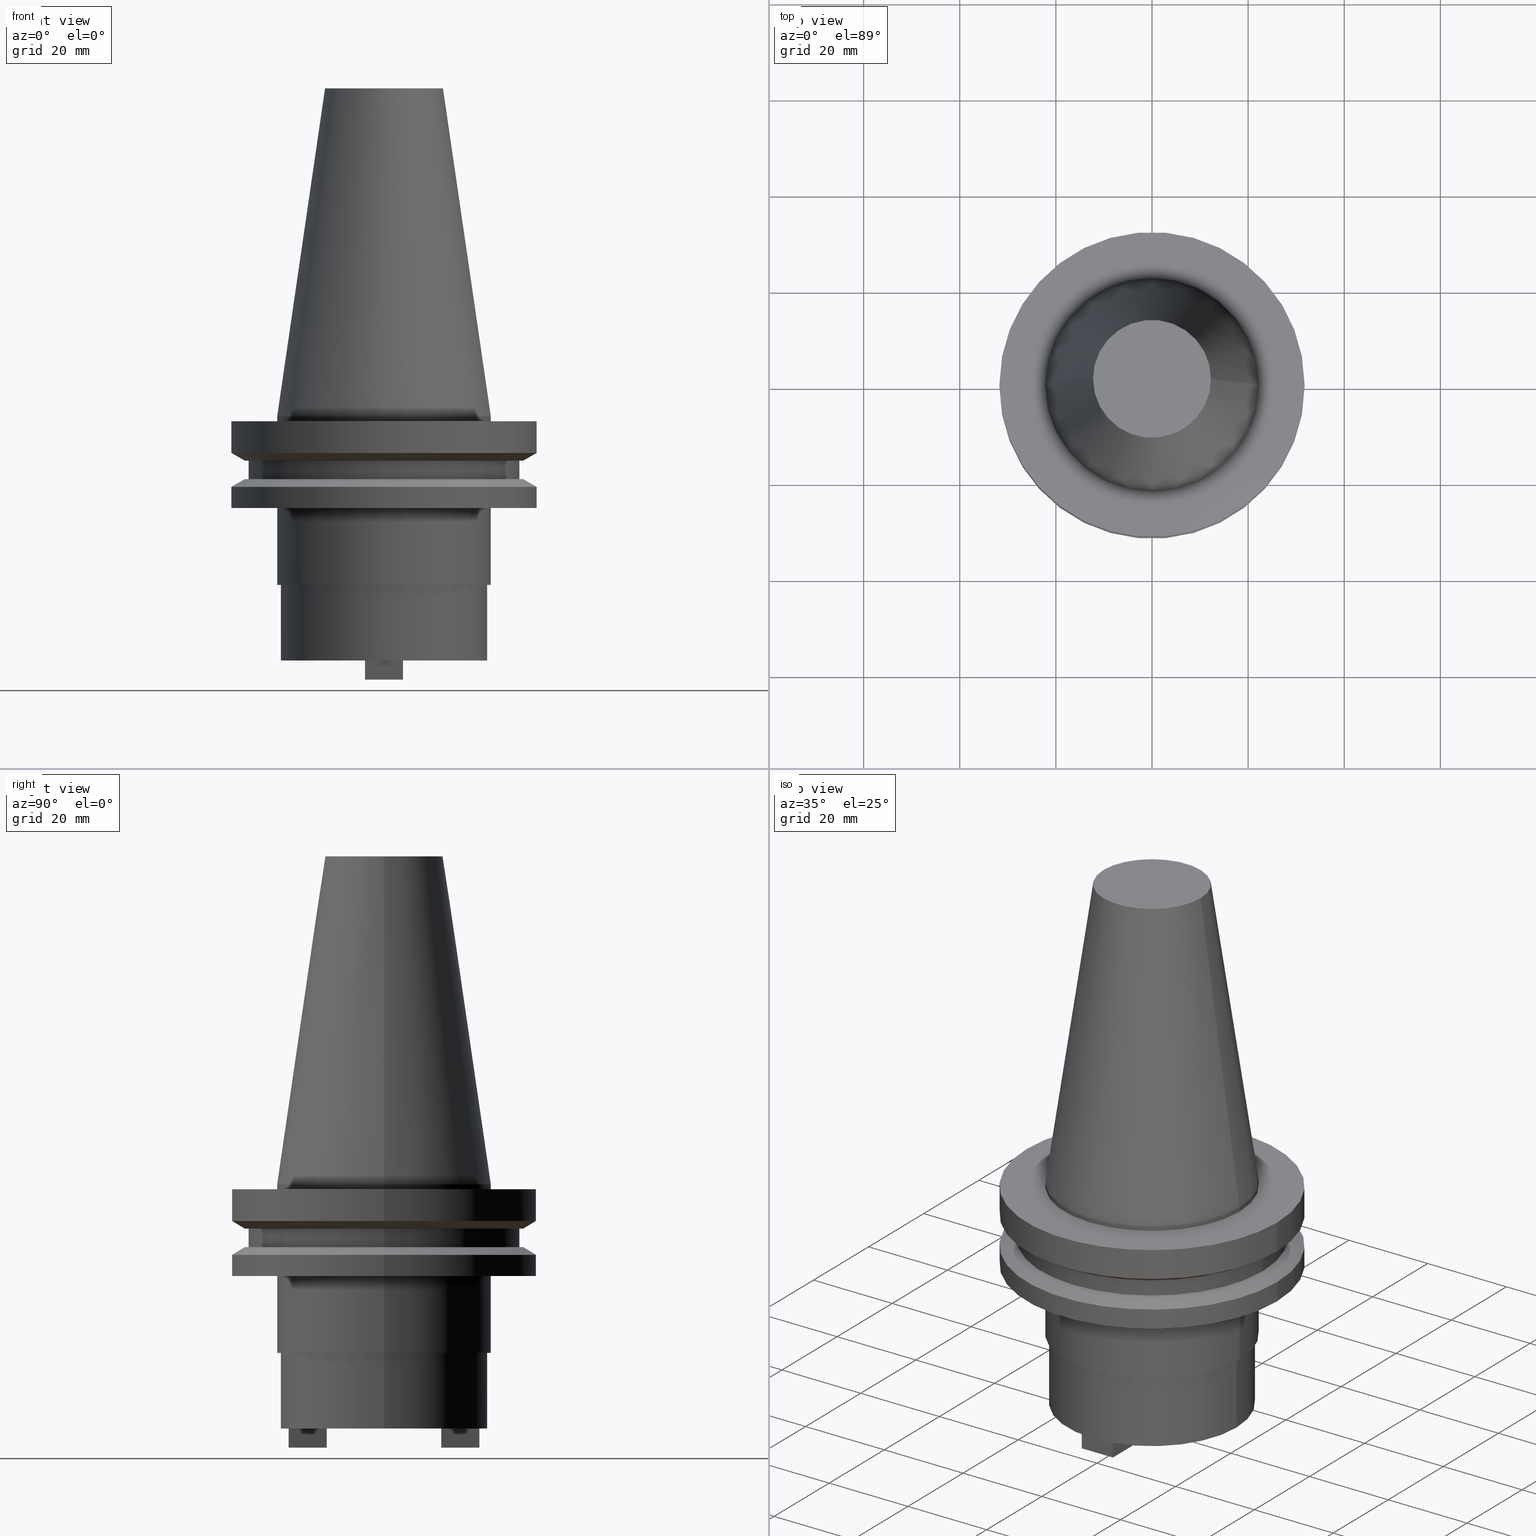
[diagram: canonical four-view strip — front | top / right | iso, engineering-drawing reading convention]
A machine part, canonical four-view strip (front | top / right | iso — engineering-drawing reading convention). The complete STEP part file that produces these views, byte-faithful:
ISO-10303-21;
HEADER;
FILE_DESCRIPTION (( 'STEP AP203' ),
    '1' );
FILE_NAME ('BCV40-SMC_750-2.STEP',
    '2022-02-25T14:57:23',
    ( '' ),
    ( '' ),
    'SwSTEP 2.0',
    'SolidWorks 2021',
    '' );
FILE_SCHEMA (( 'CONFIG_CONTROL_DESIGN' ));
ENDSEC;

DATA;
#1 = PERSON_AND_ORGANIZATION ( #601, #628 ) ;
#2 = CARTESIAN_POINT ( 'NONE',  ( 22.22500000000000142, 2.721777511104992849E-15, 0.000000000000000000 ) ) ;
#3 = ORIENTED_EDGE ( 'NONE', *, *, #38, .F. ) ;
#4 = EDGE_CURVE ( 'NONE', #1005, #584, #62, .T. ) ;
#5 = CARTESIAN_POINT ( 'NONE',  ( 0.000000000000000000, 0.000000000000000000, -19.04999999999999716 ) ) ;
#6 = CIRCLE ( 'NONE', #989, 28.97919780457008088 ) ;
#7 = CONICAL_SURFACE ( 'NONE', #25, 31.75000000000000000, 1.047197551196597853 ) ;
#8 = CARTESIAN_POINT ( 'NONE',  ( 3.964999999999995417, 19.84000000000000341, -54.76999999999999602 ) ) ;
#9 = CARTESIAN_POINT ( 'NONE',  ( 3.964999999999995417, 11.91000000000000192, -54.76999999999999602 ) ) ;
#10 = ORIENTED_EDGE ( 'NONE', *, *, #489, .F. ) ;
#11 = AXIS2_PLACEMENT_3D ( 'NONE', #100, #14, #689 ) ;
#12 = FACE_OUTER_BOUND ( 'NONE', #512, .T. ) ;
#13 = ADVANCED_FACE ( 'NONE', ( #673 ), #1065, .T. ) ;
#14 = DIRECTION ( 'NONE',  ( -0.000000000000000000, -0.000000000000000000, 1.000000000000000000 ) ) ;
#15 = CYLINDRICAL_SURFACE ( 'NONE', #814, 22.22500000000000142 ) ;
#16 = EDGE_LOOP ( 'NONE', ( #944, #972, #617, #808 ) ) ;
#17 = CARTESIAN_POINT ( 'NONE',  ( 0.000000000000000000, 0.000000000000000000, -50.80000000000000426 ) ) ;
#18 = ADVANCED_FACE ( 'NONE', ( #254 ), #904, .T. ) ;
#19 = DIRECTION ( 'NONE',  ( 1.000000000000000000, 0.000000000000000000, 0.000000000000000000 ) ) ;
#20 = EDGE_LOOP ( 'NONE', ( #960, #140, #717, #671 ) ) ;
#21 = PLANE ( 'NONE',  #215 ) ;
#22 = ORIENTED_EDGE ( 'NONE', *, *, #875, .F. ) ;
#23 = AXIS2_PLACEMENT_3D ( 'NONE', #1046, #454, #803 ) ;
#24 = DIRECTION ( 'NONE',  ( -0.000000000000000000, -0.000000000000000000, 1.000000000000000000 ) ) ;
#25 = AXIS2_PLACEMENT_3D ( 'NONE', #30, #199, #450 ) ;
#26 = CARTESIAN_POINT ( 'NONE',  ( 3.964999999999997193, -19.83999999999999631, -54.76999999999999602 ) ) ;
#27 = EDGE_CURVE ( 'NONE', #410, #1084, #570, .T. ) ;
#28 = DIRECTION ( 'NONE',  ( -0.000000000000000000, -0.000000000000000000, 1.000000000000000000 ) ) ;
#29 = APPROVAL_PERSON_ORGANIZATION ( #484, #789, #883 ) ;
#30 = CARTESIAN_POINT ( 'NONE',  ( 0.000000000000000000, 0.000000000000000000, -14.65472339340266572 ) ) ;
#31 = VERTEX_POINT ( 'NONE', #820 ) ;
#32 = CARTESIAN_POINT ( 'NONE',  ( -31.75000000000000000, 3.888253587292846476E-15, -1.000000000000000888 ) ) ;
#33 = APPROVAL_STATUS ( 'not_yet_approved' ) ;
#34 = EDGE_LOOP ( 'NONE', ( #917, #639, #1027, #451 ) ) ;
#35 = CARTESIAN_POINT ( 'NONE',  ( -4.215000000000000746, 5.161886258406095527E-16, -50.80000000000000426 ) ) ;
#36 = ORIENTED_EDGE ( 'NONE', *, *, #453, .T. ) ;
#37 = DIRECTION ( 'NONE',  ( -0.000000000000000000, -0.000000000000000000, 1.000000000000000000 ) ) ;
#38 = EDGE_CURVE ( 'NONE', #445, #104, #641, .T. ) ;
#39 = ORIENTED_EDGE ( 'NONE', *, *, #465, .T. ) ;
#40 = CARTESIAN_POINT ( 'NONE',  ( 3.964999999999995417, 11.91000000000000192, -50.79999999999999716 ) ) ;
#41 = CIRCLE ( 'NONE', #469, 31.75000000000000000 ) ;
#42 = CARTESIAN_POINT ( 'NONE',  ( 0.000000000000000000, 0.000000000000000000, -13.05499999999999794 ) ) ;
#43 = VECTOR ( 'NONE', #417, 1000.000000000000000 ) ;
#44 = ORIENTED_EDGE ( 'NONE', *, *, #603, .T. ) ;
#45 = FACE_OUTER_BOUND ( 'NONE', #65, .T. ) ;
#46 = CARTESIAN_POINT ( 'NONE',  ( 0.000000000000000000, 0.000000000000000000, -19.04999999999999716 ) ) ;
#47 = CYLINDRICAL_SURFACE ( 'NONE', #758, 31.75000000000000000 ) ;
#48 = DATE_TIME_ROLE ( 'creation_date' ) ;
#49 = CARTESIAN_POINT ( 'NONE',  ( -22.22500000000000142, 2.721777511104992849E-15, 68.25000000000000000 ) ) ;
#50 = ADVANCED_FACE ( 'NONE', ( #1083, #920 ), #408, .F. ) ;
#51 = DIRECTION ( 'NONE',  ( -0.000000000000000000, -0.000000000000000000, 1.000000000000000000 ) ) ;
#52 = DIRECTION ( 'NONE',  ( -0.000000000000000000, -0.000000000000000000, 1.000000000000000000 ) ) ;
#53 = SHAPE_DEFINITION_REPRESENTATION ( #695, #654 ) ;
#54 = ORIENTED_EDGE ( 'NONE', *, *, #261, .F. ) ;
#55 = PRODUCT_RELATED_PRODUCT_CATEGORY ( 'detail', '', ( #493 ) ) ;
#56 = LINE ( 'NONE', #903, #131 ) ;
#57 = AXIS2_PLACEMENT_3D ( 'NONE', #622, #543, #876 ) ;
#58 = ADVANCED_FACE ( 'NONE', ( #159 ), #312, .T. ) ;
#59 = DIRECTION ( 'NONE',  ( -1.000000000000000000, 0.000000000000000000, -0.000000000000000000 ) ) ;
#60 = CARTESIAN_POINT ( 'NONE',  ( 3.964999999999995417, 19.84000000000000341, -54.76999999999999602 ) ) ;
#61 = PLANE ( 'NONE',  #923 ) ;
#62 = CIRCLE ( 'NONE', #997, 28.17999999999999972 ) ;
#63 = EDGE_CURVE ( 'NONE', #104, #137, #391, .T. ) ;
#64 = CARTESIAN_POINT ( 'NONE',  ( 0.000000000000000000, 0.000000000000000000, -13.05499999999999794 ) ) ;
#65 = EDGE_LOOP ( 'NONE', ( #217, #638, #491, #498 ) ) ;
#66 = DIRECTION ( 'NONE',  ( -0.000000000000000000, -0.000000000000000000, 1.000000000000000000 ) ) ;
#67 = DIRECTION ( 'NONE',  ( 0.8660254037844389297, 0.000000000000000000, 0.4999999999999995004 ) ) ;
#68 = VERTEX_POINT ( 'NONE', #155 ) ;
#69 = PLANE ( 'NONE',  #730 ) ;
#70 = EDGE_CURVE ( 'NONE', #278, #970, #236, .T. ) ;
#71 = FACE_BOUND ( 'NONE', #740, .T. ) ;
#72 = VECTOR ( 'NONE', #66, 1000.000000000000000 ) ;
#73 = EDGE_LOOP ( 'NONE', ( #1079, #799, #683, #347 ) ) ;
#74 = VECTOR ( 'NONE', #725, 1000.000000000000000 ) ;
#75 = ORIENTED_EDGE ( 'NONE', *, *, #359, .T. ) ;
#76 = EDGE_CURVE ( 'NONE', #964, #218, #836, .T. ) ;
#77 = FACE_OUTER_BOUND ( 'NONE', #782, .T. ) ;
#78 = ORIENTED_EDGE ( 'NONE', *, *, #825, .T. ) ;
#79 = EDGE_LOOP ( 'NONE', ( #211, #666, #36, #669 ) ) ;
#80 = PERSON_AND_ORGANIZATION_ROLE ( 'design_owner' ) ;
#81 = EDGE_CURVE ( 'NONE', #821, #633, #591, .T. ) ;
#82 = FACE_OUTER_BOUND ( 'NONE', #857, .T. ) ;
#83 = ORIENTED_EDGE ( 'NONE', *, *, #350, .F. ) ;
#84 = CARTESIAN_POINT ( 'NONE',  ( 3.964999999999997193, -11.90999999999999837, -54.76999999999999602 ) ) ;
#85 = ORIENTED_EDGE ( 'NONE', *, *, #910, .T. ) ;
#86 = COORDINATED_UNIVERSAL_TIME_OFFSET ( 6, 0, .BEHIND. ) ;
#87 = CARTESIAN_POINT ( 'NONE',  ( 0.000000000000000000, 0.000000000000000000, 68.25000000000000000 ) ) ;
#88 = EDGE_LOOP ( 'NONE', ( #242, #271, #119, #363 ) ) ;
#89 = EDGE_CURVE ( 'NONE', #375, #510, #415, .T. ) ;
#90 = VECTOR ( 'NONE', #746, 1000.000000000000000 ) ;
#91 = EDGE_CURVE ( 'NONE', #686, #1084, #655, .T. ) ;
#92 = CARTESIAN_POINT ( 'NONE',  ( 0.000000000000000000, 0.000000000000000000, -14.65472339340266572 ) ) ;
#93 = AXIS2_PLACEMENT_3D ( 'NONE', #667, #734, #988 ) ;
#94 = DIRECTION ( 'NONE',  ( -1.000000000000000000, 0.000000000000000000, 0.000000000000000000 ) ) ;
#95 = ORIENTED_EDGE ( 'NONE', *, *, #573, .F. ) ;
#96 = AXIS2_PLACEMENT_3D ( 'NONE', #737, #481, #577 ) ;
#97 = DIRECTION ( 'NONE',  ( -1.000000000000000000, 0.000000000000000000, 0.000000000000000000 ) ) ;
#98 = EDGE_CURVE ( 'NONE', #68, #631, #996, .T. ) ;
#99 = EDGE_LOOP ( 'NONE', ( #751, #473, #1052, #705 ) ) ;
#100 = CARTESIAN_POINT ( 'NONE',  ( 0.000000000000000000, 0.000000000000000000, -1.000000000000000888 ) ) ;
#101 = FACE_OUTER_BOUND ( 'NONE', #250, .T. ) ;
#102 = ORIENTED_EDGE ( 'NONE', *, *, #946, .T. ) ;
#103 = DIRECTION ( 'NONE',  ( 0.000000000000000000, 0.000000000000000000, -1.000000000000000000 ) ) ;
#104 = VERTEX_POINT ( 'NONE', #323 ) ;
#105 = CARTESIAN_POINT ( 'NONE',  ( -21.44999999999999929, 2.626867384171072557E-15, -35.04999999999999716 ) ) ;
#106 = ORIENTED_EDGE ( 'NONE', *, *, #212, .T. ) ;
#107 = ORIENTED_EDGE ( 'NONE', *, *, #1056, .T. ) ;
#108 = FACE_BOUND ( 'NONE', #367, .T. ) ;
#109 = VERTEX_POINT ( 'NONE', #513 ) ;
#110 = AXIS2_PLACEMENT_3D ( 'NONE', #458, #206, #285 ) ;
#111 = AXIS2_PLACEMENT_3D ( 'NONE', #549, #357, #1031 ) ;
#112 = CARTESIAN_POINT ( 'NONE',  ( 0.000000000000000000, 0.000000000000000000, 0.000000000000000000 ) ) ;
#113 = ORIENTED_EDGE ( 'NONE', *, *, #798, .T. ) ;
#114 = ORIENTED_EDGE ( 'NONE', *, *, #27, .T. ) ;
#115 = AXIS2_PLACEMENT_3D ( 'NONE', #733, #913, #1061 ) ;
#116 = APPROVAL_PERSON_ORGANIZATION ( #1, #327, #331 ) ;
#117 = CARTESIAN_POINT ( 'NONE',  ( 0.000000000000000000, 0.000000000000000000, 68.25000000000000000 ) ) ;
#118 = DIRECTION ( 'NONE',  ( 0.000000000000000000, -1.000000000000000000, 0.000000000000000000 ) ) ;
#119 = ORIENTED_EDGE ( 'NONE', *, *, #120, .F. ) ;
#120 = EDGE_CURVE ( 'NONE', #925, #1016, #713, .T. ) ;
#121 = LINE ( 'NONE', #642, #1039 ) ;
#122 = CALENDAR_DATE ( 2022, 25, 2 ) ;
#123 = LINE ( 'NONE', #794, #373 ) ;
#124 = ORIENTED_EDGE ( 'NONE', *, *, #1025, .T. ) ;
#125 = CARTESIAN_POINT ( 'NONE',  ( -22.22500000000000142, 2.721777511104992849E-15, -1.000000000000000888 ) ) ;
#126 = ADVANCED_FACE ( 'NONE', ( #354 ), #848, .T. ) ;
#127 = CARTESIAN_POINT ( 'NONE',  ( 0.000000000000000000, 0.000000000000000000, -19.04999999999999716 ) ) ;
#128 = ORIENTED_EDGE ( 'NONE', *, *, #946, .F. ) ;
#129 = CIRCLE ( 'NONE', #921, 22.22500000000000142 ) ;
#130 = EDGE_LOOP ( 'NONE', ( #767, #869 ) ) ;
#131 = VECTOR ( 'NONE', #142, 1000.000000000000000 ) ;
#132 = CYLINDRICAL_SURFACE ( 'NONE', #975, 31.75000000000000000 ) ;
#133 = COORDINATED_UNIVERSAL_TIME_OFFSET ( 6, 0, .BEHIND. ) ;
#134 = ADVANCED_FACE ( 'NONE', ( #12 ), #886, .T. ) ;
#135 = ORIENTED_EDGE ( 'NONE', *, *, #370, .F. ) ;
#136 = LINE ( 'NONE', #398, #525 ) ;
#137 = VERTEX_POINT ( 'NONE', #781 ) ;
#138 = VERTEX_POINT ( 'NONE', #618 ) ;
#139 = DIRECTION ( 'NONE',  ( -1.000000000000000000, 0.000000000000000000, -0.000000000000000000 ) ) ;
#140 = ORIENTED_EDGE ( 'NONE', *, *, #609, .F. ) ;
#141 = CARTESIAN_POINT ( 'NONE',  ( -31.75000000000000000, 3.888253587292846476E-15, -14.65472339340266572 ) ) ;
#142 = DIRECTION ( 'NONE',  ( -0.000000000000000000, -0.000000000000000000, 1.000000000000000000 ) ) ;
#143 = PERSON_AND_ORGANIZATION ( #601, #628 ) ;
#144 = CARTESIAN_POINT ( 'NONE',  ( -22.22500000000000142, 0.000000000000000000, 0.000000000000000000 ) ) ;
#145 = DIRECTION ( 'NONE',  ( 0.000000000000000000, -0.000000000000000000, 1.000000000000000000 ) ) ;
#146 = VECTOR ( 'NONE', #813, 1000.000000000000000 ) ;
#147 = ADVANCED_FACE ( 'NONE', ( #941, #108 ), #21, .F. ) ;
#148 = DIRECTION ( 'NONE',  ( 1.000000000000000000, 0.000000000000000000, 0.000000000000000000 ) ) ;
#149 = AXIS2_PLACEMENT_3D ( 'NONE', #918, #232, #148 ) ;
#150 = AXIS2_PLACEMENT_3D ( 'NONE', #112, #866, #706 ) ;
#151 = DIRECTION ( 'NONE',  ( -0.000000000000000000, -0.000000000000000000, 1.000000000000000000 ) ) ;
#152 = PLANE ( 'NONE',  #96 ) ;
#153 = FACE_OUTER_BOUND ( 'NONE', #397, .T. ) ;
#154 = CC_DESIGN_PERSON_AND_ORGANIZATION_ASSIGNMENT ( #294, #225, ( #390 ) ) ;
#155 = CARTESIAN_POINT ( 'NONE',  ( -28.97919780457007732, 3.718590885307660666E-15, -9.205000000000005400 ) ) ;
#156 = ORIENTED_EDGE ( 'NONE', *, *, #307, .T. ) ;
#157 = CARTESIAN_POINT ( 'NONE',  ( 0.000000000000000000, 0.000000000000000000, 0.000000000000000000 ) ) ;
#158 = CARTESIAN_POINT ( 'NONE',  ( -22.22500000000000142, 0.000000000000000000, 0.000000000000000000 ) ) ;
#159 = FACE_OUTER_BOUND ( 'NONE', #990, .T. ) ;
#160 = ADVANCED_FACE ( 'NONE', ( #598 ), #756, .T. ) ;
#161 = ORIENTED_EDGE ( 'NONE', *, *, #1036, .F. ) ;
#162 = DIRECTION ( 'NONE',  ( 1.000000000000000000, -0.000000000000000000, -0.000000000000000000 ) ) ;
#163 = DIRECTION ( 'NONE',  ( 0.000000000000000000, 0.000000000000000000, -1.000000000000000000 ) ) ;
#164 = VECTOR ( 'NONE', #435, 1000.000000000000000 ) ;
#165 = AXIS2_PLACEMENT_3D ( 'NONE', #963, #461, #776 ) ;
#166 = DIRECTION ( 'NONE',  ( 0.000000000000000000, -0.000000000000000000, 1.000000000000000000 ) ) ;
#167 = VECTOR ( 'NONE', #332, 1000.000000000000000 ) ;
#168 = ADVANCED_FACE ( 'NONE', ( #176 ), #1012, .F. ) ;
#169 = ORIENTED_EDGE ( 'NONE', *, *, #98, .F. ) ;
#170 = PLANE ( 'NONE',  #590 ) ;
#171 = EDGE_LOOP ( 'NONE', ( #533, #490, #864, #938 ) ) ;
#172 = CARTESIAN_POINT ( 'NONE',  ( 3.964999999999997193, -11.90999999999999837, -50.79999999999999716 ) ) ;
#173 = VERTEX_POINT ( 'NONE', #180 ) ;
#174 = DATE_AND_TIME ( #675, #942 ) ;
#175 = CARTESIAN_POINT ( 'NONE',  ( 0.000000000000000000, 0.000000000000000000, 0.000000000000000000 ) ) ;
#176 = FACE_OUTER_BOUND ( 'NONE', #476, .T. ) ;
#177 = DIRECTION ( 'NONE',  ( -0.000000000000000000, -0.000000000000000000, 1.000000000000000000 ) ) ;
#178 = ORIENTED_EDGE ( 'NONE', *, *, #98, .T. ) ;
#179 = ADVANCED_FACE ( 'NONE', ( #1017 ), #277, .F. ) ;
#180 = CARTESIAN_POINT ( 'NONE',  ( 22.22500000000000142, 0.000000000000000000, -19.04999999999999716 ) ) ;
#181 = DESIGN_CONTEXT ( 'detailed design', #531, 'design' ) ;
#182 = LINE ( 'NONE', #581, #319 ) ;
#183 = CARTESIAN_POINT ( 'NONE',  ( 0.000000000000000000, 21.44999999999999929, -50.79999999999999716 ) ) ;
#184 = ORIENTED_EDGE ( 'NONE', *, *, #709, .T. ) ;
#185 = CIRCLE ( 'NONE', #237, 31.75000000000000000 ) ;
#186 = CARTESIAN_POINT ( 'NONE',  ( 0.000000000000000000, 12.27178102086201150, 68.25000000000000000 ) ) ;
#187 = DIRECTION ( 'NONE',  ( 1.000000000000000000, -0.000000000000000000, -0.000000000000000000 ) ) ;
#188 = ORIENTED_EDGE ( 'NONE', *, *, #465, .F. ) ;
#189 = CARTESIAN_POINT ( 'NONE',  ( 0.000000000000000000, 0.000000000000000000, -9.205000000000005400 ) ) ;
#190 = DIRECTION ( 'NONE',  ( 1.000000000000000000, 0.000000000000000000, 0.000000000000000000 ) ) ;
#191 = ORIENTED_EDGE ( 'NONE', *, *, #1087, .F. ) ;
#192 = CARTESIAN_POINT ( 'NONE',  ( 21.44999999999999929, 0.000000000000000000, -50.79999999999999716 ) ) ;
#193 = EDGE_LOOP ( 'NONE', ( #124, #778, #957, #106 ) ) ;
#194 = CARTESIAN_POINT ( 'NONE',  ( 3.964999999999997193, -11.90999999999999837, -54.76999999999999602 ) ) ;
#195 = CIRCLE ( 'NONE', #812, 4.215000000000000746 ) ;
#196 = CONICAL_SURFACE ( 'NONE', #287, 28.97919780457007732, 1.047197551196598297 ) ;
#197 = EDGE_CURVE ( 'NONE', #633, #862, #504, .T. ) ;
#198 = VECTOR ( 'NONE', #295, 1000.000000000000000 ) ;
#199 = DIRECTION ( 'NONE',  ( 0.000000000000000000, 0.000000000000000000, -1.000000000000000000 ) ) ;
#200 = VECTOR ( 'NONE', #230, 1000.000000000000000 ) ;
#201 = CARTESIAN_POINT ( 'NONE',  ( 3.964999999999997193, -11.90999999999999837, -54.76999999999999602 ) ) ;
#202 = PERSON_AND_ORGANIZATION_ROLE ( 'creator' ) ;
#203 = LINE ( 'NONE', #374, #1040 ) ;
#204 = ORIENTED_EDGE ( 'NONE', *, *, #482, .T. ) ;
#205 = EDGE_CURVE ( 'NONE', #278, #1011, #503, .T. ) ;
#206 = DIRECTION ( 'NONE',  ( 1.000000000000000000, 0.000000000000000000, 0.000000000000000000 ) ) ;
#207 = PERSON_AND_ORGANIZATION_ROLE ( 'classification_officer' ) ;
#208 = ORIENTED_EDGE ( 'NONE', *, *, #474, .F. ) ;
#209 = DIRECTION ( 'NONE',  ( 1.000000000000000000, 0.000000000000000000, 0.000000000000000000 ) ) ;
#210 = VERTEX_POINT ( 'NONE', #840 ) ;
#211 = ORIENTED_EDGE ( 'NONE', *, *, #359, .F. ) ;
#212 = EDGE_CURVE ( 'NONE', #659, #561, #934, .T. ) ;
#213 = CARTESIAN_POINT ( 'NONE',  ( 0.000000000000000000, 0.000000000000000000, -7.605276606597335842 ) ) ;
#214 = VECTOR ( 'NONE', #1077, 1000.000000000000000 ) ;
#215 = AXIS2_PLACEMENT_3D ( 'NONE', #773, #342, #1030 ) ;
#216 = FACE_OUTER_BOUND ( 'NONE', #79, .T. ) ;
#217 = ORIENTED_EDGE ( 'NONE', *, *, #394, .F. ) ;
#218 = VERTEX_POINT ( 'NONE', #1021 ) ;
#219 = CIRCLE ( 'NONE', #780, 22.22500000000000142 ) ;
#220 = DIRECTION ( 'NONE',  ( 1.000000000000000000, 0.000000000000000000, 0.000000000000000000 ) ) ;
#221 = EDGE_CURVE ( 'NONE', #434, #210, #448, .T. ) ;
#222 = ORIENTED_EDGE ( 'NONE', *, *, #205, .T. ) ;
#223 = DIRECTION ( 'NONE',  ( 1.000000000000000000, 0.000000000000000000, 0.000000000000000000 ) ) ;
#224 = DIRECTION ( 'NONE',  ( 1.000000000000000000, 0.000000000000000000, 0.000000000000000000 ) ) ;
#225 = PERSON_AND_ORGANIZATION_ROLE ( 'creator' ) ;
#226 = ORIENTED_EDGE ( 'NONE', *, *, #313, .T. ) ;
#227 = LINE ( 'NONE', #49, #680 ) ;
#228 = DIRECTION ( 'NONE',  ( 0.000000000000000000, 0.000000000000000000, -1.000000000000000000 ) ) ;
#229 = ORIENTED_EDGE ( 'NONE', *, *, #1066, .F. ) ;
#230 = DIRECTION ( 'NONE',  ( -0.000000000000000000, -0.000000000000000000, 1.000000000000000000 ) ) ;
#231 = EDGE_CURVE ( 'NONE', #841, #844, #195, .T. ) ;
#232 = DIRECTION ( 'NONE',  ( -0.000000000000000000, -0.000000000000000000, 1.000000000000000000 ) ) ;
#233 = CIRCLE ( 'NONE', #644, 21.44999999999999929 ) ;
#234 = AXIS2_PLACEMENT_3D ( 'NONE', #724, #827, #986 ) ;
#235 = CARTESIAN_POINT ( 'NONE',  ( 0.000000000000000000, 0.000000000000000000, -9.205000000000005400 ) ) ;
#236 = LINE ( 'NONE', #829, #1075 ) ;
#237 = AXIS2_PLACEMENT_3D ( 'NONE', #526, #260, #599 ) ;
#238 = ORIENTED_EDGE ( 'NONE', *, *, #709, .F. ) ;
#239 = CARTESIAN_POINT ( 'NONE',  ( 0.000000000000000000, 0.000000000000000000, 0.000000000000000000 ) ) ;
#240 = EDGE_CURVE ( 'NONE', #138, #821, #952, .T. ) ;
#241 = CARTESIAN_POINT ( 'NONE',  ( -28.97919780457007732, 3.548928183322474856E-15, -9.205000000000005400 ) ) ;
#242 = ORIENTED_EDGE ( 'NONE', *, *, #785, .T. ) ;
#243 = CARTESIAN_POINT ( 'NONE',  ( -4.214999999999998082, 5.161886258406091583E-16, -35.04999999999999716 ) ) ;
#244 = CARTESIAN_POINT ( 'NONE',  ( 0.000000000000000000, 0.000000000000000000, -7.605276606597335842 ) ) ;
#245 = EDGE_CURVE ( 'NONE', #862, #633, #233, .T. ) ;
#246 = DIRECTION ( 'NONE',  ( 1.000000000000000000, 0.000000000000000000, 0.000000000000000000 ) ) ;
#247 = EDGE_LOOP ( 'NONE', ( #238, #324 ) ) ;
#248 = PERSON_AND_ORGANIZATION ( #601, #628 ) ;
#249 = FACE_BOUND ( 'NONE', #34, .T. ) ;
#250 = EDGE_LOOP ( 'NONE', ( #557, #10, #889, #837 ) ) ;
#251 = AXIS2_PLACEMENT_3D ( 'NONE', #1069, #919, #311 ) ;
#252 = VECTOR ( 'NONE', #500, 1000.000000000000000 ) ;
#253 = CC_DESIGN_PERSON_AND_ORGANIZATION_ASSIGNMENT ( #143, #207, ( #452 ) ) ;
#254 = FACE_OUTER_BOUND ( 'NONE', #314, .T. ) ;
#255 = EDGE_CURVE ( 'NONE', #930, #580, #926, .T. ) ;
#256 = ORIENTED_EDGE ( 'NONE', *, *, #830, .T. ) ;
#257 = CARTESIAN_POINT ( 'NONE',  ( 3.964999999999997193, -19.83999999999999631, -54.76999999999999602 ) ) ;
#258 = ORIENTED_EDGE ( 'NONE', *, *, #965, .T. ) ;
#259 = CARTESIAN_POINT ( 'NONE',  ( 0.000000000000000000, 0.000000000000000000, -1.000000000000000888 ) ) ;
#260 = DIRECTION ( 'NONE',  ( -0.000000000000000000, -0.000000000000000000, 1.000000000000000000 ) ) ;
#261 = EDGE_CURVE ( 'NONE', #364, #358, #936, .T. ) ;
#262 = DIRECTION ( 'NONE',  ( 0.000000000000000000, -0.000000000000000000, 1.000000000000000000 ) ) ;
#263 = ORIENTED_EDGE ( 'NONE', *, *, #672, .T. ) ;
#264 = DIRECTION ( 'NONE',  ( 0.000000000000000000, 0.000000000000000000, -1.000000000000000000 ) ) ;
#265 = DIRECTION ( 'NONE',  ( 1.000000000000000000, 0.000000000000000000, 0.000000000000000000 ) ) ;
#266 = CC_DESIGN_DATE_AND_TIME_ASSIGNMENT ( #548, #48, ( #600 ) ) ;
#267 = CARTESIAN_POINT ( 'NONE',  ( 0.000000000000000000, 0.000000000000000000, 0.000000000000000000 ) ) ;
#268 = ORIENTED_EDGE ( 'NONE', *, *, #231, .F. ) ;
#269 = AXIS2_PLACEMENT_3D ( 'NONE', #524, #519, #97 ) ;
#270 = CARTESIAN_POINT ( 'NONE',  ( 0.000000000000000000, 0.000000000000000000, -35.04999999999999716 ) ) ;
#271 = ORIENTED_EDGE ( 'NONE', *, *, #394, .T. ) ;
#272 = VECTOR ( 'NONE', #326, 1000.000000000000000 ) ;
#273 = CYLINDRICAL_SURFACE ( 'NONE', #834, 4.214999999999998082 ) ;
#274 = ORIENTED_EDGE ( 'NONE', *, *, #329, .F. ) ;
#275 = VECTOR ( 'NONE', #162, 1000.000000000000000 ) ;
#276 = EDGE_CURVE ( 'NONE', #358, #1072, #121, .T. ) ;
#277 = PLANE ( 'NONE',  #334 ) ;
#278 = VERTEX_POINT ( 'NONE', #635 ) ;
#279 = CARTESIAN_POINT ( 'NONE',  ( 0.000000000000000000, 0.000000000000000000, -35.04999999999999716 ) ) ;
#280 = EDGE_LOOP ( 'NONE', ( #156, #258, #553, #831 ) ) ;
#281 = DIRECTION ( 'NONE',  ( 1.000000000000000000, 0.000000000000000000, 0.000000000000000000 ) ) ;
#282 = EDGE_CURVE ( 'NONE', #1084, #930, #894, .T. ) ;
#283 = CARTESIAN_POINT ( 'NONE',  ( 4.215000000000000746, 0.000000000000000000, -50.80000000000000426 ) ) ;
#284 = ORIENTED_EDGE ( 'NONE', *, *, #457, .F. ) ;
#285 = DIRECTION ( 'NONE',  ( 0.000000000000000000, 0.000000000000000000, -1.000000000000000000 ) ) ;
#286 = APPROVAL ( #650, 'UNSPECIFIED' ) ;
#287 = AXIS2_PLACEMENT_3D ( 'NONE', #189, #885, #629 ) ;
#288 = VECTOR ( 'NONE', #943, 1000.000000000000000 ) ;
#289 = CYLINDRICAL_SURFACE ( 'NONE', #111, 31.75000000000000000 ) ;
#290 = CARTESIAN_POINT ( 'NONE',  ( 0.000000000000000000, 0.000000000000000000, 68.25000000000000000 ) ) ;
#291 = CARTESIAN_POINT ( 'NONE',  ( -22.22500000000000142, 2.721777511104992849E-15, -19.04999999999999716 ) ) ;
#292 = EDGE_CURVE ( 'NONE', #844, #841, #506, .T. ) ;
#293 = CARTESIAN_POINT ( 'NONE',  ( -3.965000000000004299, 11.91000000000000192, -50.79999999999999716 ) ) ;
#294 = PERSON_AND_ORGANIZATION ( #601, #628 ) ;
#295 = DIRECTION ( 'NONE',  ( -0.000000000000000000, -0.000000000000000000, 1.000000000000000000 ) ) ;
#296 = EDGE_LOOP ( 'NONE', ( #135, #912 ) ) ;
#297 = CARTESIAN_POINT ( 'NONE',  ( 0.000000000000000000, 0.000000000000000000, -50.80000000000000426 ) ) ;
#298 = ORIENTED_EDGE ( 'NONE', *, *, #793, .F. ) ;
#299 = CARTESIAN_POINT ( 'NONE',  ( -3.965000000000004299, -11.91000000000000014, -50.79999999999999716 ) ) ;
#300 = AXIS2_PLACEMENT_3D ( 'NONE', #817, #909, #828 ) ;
#301 = LINE ( 'NONE', #399, #72 ) ;
#302 = FACE_OUTER_BOUND ( 'NONE', #787, .T. ) ;
#303 = PERSON_AND_ORGANIZATION ( #601, #628 ) ;
#304 = LOCAL_TIME ( 8, 57, 23.00000000000000000, #791 ) ;
#305 = CARTESIAN_POINT ( 'NONE',  ( 28.97919780457007732, 0.000000000000000000, -9.205000000000005400 ) ) ;
#306 = DIRECTION ( 'NONE',  ( -1.000000000000000000, 0.000000000000000000, -0.000000000000000000 ) ) ;
#307 = EDGE_CURVE ( 'NONE', #358, #364, #372, .T. ) ;
#308 = CARTESIAN_POINT ( 'NONE',  ( 21.44999999999999929, 0.000000000000000000, 0.000000000000000000 ) ) ;
#309 = DIRECTION ( 'NONE',  ( 0.000000000000000000, -1.000000000000000000, -0.000000000000000000 ) ) ;
#310 = CARTESIAN_POINT ( 'NONE',  ( 22.22499999999999787, 0.000000000000000000, -35.04999999999999716 ) ) ;
#311 = DIRECTION ( 'NONE',  ( 0.000000000000000000, 0.000000000000000000, -1.000000000000000000 ) ) ;
#312 = CYLINDRICAL_SURFACE ( 'NONE', #352, 31.75000000000000000 ) ;
#313 = EDGE_CURVE ( 'NONE', #210, #721, #559, .T. ) ;
#314 = EDGE_LOOP ( 'NONE', ( #1032, #1089, #226, #333 ) ) ;
#315 = DIRECTION ( 'NONE',  ( -0.000000000000000000, -0.000000000000000000, 1.000000000000000000 ) ) ;
#316 = FACE_OUTER_BOUND ( 'NONE', #736, .T. ) ;
#317 = CIRCLE ( 'NONE', #23, 28.97919780457007732 ) ;
#318 = CARTESIAN_POINT ( 'NONE',  ( -3.965000000000004299, -19.84000000000000341, -54.76999999999999602 ) ) ;
#319 = VECTOR ( 'NONE', #585, 1000.000000000000000 ) ;
#320 = ORIENTED_EDGE ( 'NONE', *, *, #910, .F. ) ;
#321 = ADVANCED_FACE ( 'NONE', ( #887 ), #132, .T. ) ;
#322 = DIRECTION ( 'NONE',  ( -0.000000000000000000, -0.000000000000000000, 1.000000000000000000 ) ) ;
#323 = CARTESIAN_POINT ( 'NONE',  ( 28.97919780457008088, 3.718590885307660666E-15, -13.05499999999999794 ) ) ;
#324 = ORIENTED_EDGE ( 'NONE', *, *, #205, .F. ) ;
#325 = CARTESIAN_POINT ( 'NONE',  ( 0.000000000000000000, 0.000000000000000000, -35.04999999999999716 ) ) ;
#326 = DIRECTION ( 'NONE',  ( -0.000000000000000000, -0.000000000000000000, 1.000000000000000000 ) ) ;
#327 = APPROVAL ( #928, 'UNSPECIFIED' ) ;
#328 = DIRECTION ( 'NONE',  ( 1.000000000000000000, 0.000000000000000000, 0.000000000000000000 ) ) ;
#329 = EDGE_CURVE ( 'NONE', #434, #930, #539, .T. ) ;
#330 = ORIENTED_EDGE ( 'NONE', *, *, #307, .F. ) ;
#331 = APPROVAL_ROLE ( '' ) ;
#332 = DIRECTION ( 'NONE',  ( -0.000000000000000000, -0.000000000000000000, 1.000000000000000000 ) ) ;
#333 = ORIENTED_EDGE ( 'NONE', *, *, #436, .T. ) ;
#334 = AXIS2_PLACEMENT_3D ( 'NONE', #186, #264, #529 ) ;
#335 = AXIS2_PLACEMENT_3D ( 'NONE', #662, #322, #384 ) ;
#336 = DIRECTION ( 'NONE',  ( 1.000000000000000000, 0.000000000000000000, 0.000000000000000000 ) ) ;
#337 = EDGE_CURVE ( 'NONE', #104, #445, #6, .T. ) ;
#338 = VECTOR ( 'NONE', #404, 1000.000000000000000 ) ;
#339 = APPROVAL_DATE_TIME ( #174, #327 ) ;
#340 = CARTESIAN_POINT ( 'NONE',  ( 0.000000000000000000, 0.000000000000000000, 68.25000000000000000 ) ) ;
#341 = EDGE_LOOP ( 'NONE', ( #769, #274, #851, #805 ) ) ;
#342 = DIRECTION ( 'NONE',  ( 0.000000000000000000, -0.000000000000000000, 1.000000000000000000 ) ) ;
#343 = ADVANCED_FACE ( 'NONE', ( #790 ), #547, .F. ) ;
#344 = ORIENTED_EDGE ( 'NONE', *, *, #443, .T. ) ;
#345 = CARTESIAN_POINT ( 'NONE',  ( -3.965000000000004299, 19.84000000000000341, -54.76999999999999602 ) ) ;
#346 = DIRECTION ( 'NONE',  ( -0.000000000000000000, -0.000000000000000000, 1.000000000000000000 ) ) ;
#347 = ORIENTED_EDGE ( 'NONE', *, *, #1056, .F. ) ;
#348 = DIRECTION ( 'NONE',  ( -0.000000000000000000, -0.000000000000000000, 1.000000000000000000 ) ) ;
#349 = FACE_OUTER_BOUND ( 'NONE', #922, .T. ) ;
#350 = EDGE_CURVE ( 'NONE', #631, #218, #646, .T. ) ;
#351 = ORIENTED_EDGE ( 'NONE', *, *, #895, .T. ) ;
#352 = AXIS2_PLACEMENT_3D ( 'NONE', #735, #739, #501 ) ;
#353 = AXIS2_PLACEMENT_3D ( 'NONE', #687, #704, #336 ) ;
#354 = FACE_OUTER_BOUND ( 'NONE', #455, .T. ) ;
#355 = ORIENTED_EDGE ( 'NONE', *, *, #785, .F. ) ;
#356 = CIRCLE ( 'NONE', #554, 31.74999999999999289 ) ;
#357 = DIRECTION ( 'NONE',  ( -0.000000000000000000, -0.000000000000000000, 1.000000000000000000 ) ) ;
#358 = VERTEX_POINT ( 'NONE', #714 ) ;
#359 = EDGE_CURVE ( 'NONE', #841, #1029, #471, .T. ) ;
#360 = CARTESIAN_POINT ( 'NONE',  ( 0.000000000000000000, 0.000000000000000000, -35.04999999999999716 ) ) ;
#361 = ORIENTED_EDGE ( 'NONE', *, *, #959, .T. ) ;
#362 = FACE_OUTER_BOUND ( 'NONE', #1047, .T. ) ;
#363 = ORIENTED_EDGE ( 'NONE', *, *, #1071, .F. ) ;
#364 = VERTEX_POINT ( 'NONE', #125 ) ;
#365 = DIRECTION ( 'NONE',  ( -0.000000000000000000, 0.000000000000000000, 1.000000000000000000 ) ) ;
#366 = FACE_OUTER_BOUND ( 'NONE', #20, .T. ) ;
#367 = EDGE_LOOP ( 'NONE', ( #344, #263 ) ) ;
#368 = DIRECTION ( 'NONE',  ( 1.000000000000000000, 0.000000000000000000, 0.000000000000000000 ) ) ;
#369 = AXIS2_PLACEMENT_3D ( 'NONE', #700, #853, #762 ) ;
#370 = EDGE_CURVE ( 'NONE', #964, #68, #317, .T. ) ;
#371 = VERTEX_POINT ( 'NONE', #32 ) ;
#372 = CIRCLE ( 'NONE', #538, 22.22500000000000142 ) ;
#373 = VECTOR ( 'NONE', #187, 1000.000000000000000 ) ;
#374 = CARTESIAN_POINT ( 'NONE',  ( 3.964999999999995417, 19.84000000000000341, -54.76999999999999602 ) ) ;
#375 = VERTEX_POINT ( 'NONE', #726 ) ;
#376 = DIRECTION ( 'NONE',  ( 1.000000000000000000, 0.000000000000000000, 0.000000000000000000 ) ) ;
#377 = DATE_AND_TIME ( #899, #614 ) ;
#378 = DIRECTION ( 'NONE',  ( -0.000000000000000000, -0.000000000000000000, 1.000000000000000000 ) ) ;
#379 = ORIENTED_EDGE ( 'NONE', *, *, #91, .F. ) ;
#380 = DIRECTION ( 'NONE',  ( 1.000000000000000000, 0.000000000000000000, 0.000000000000000000 ) ) ;
#381 = VERTEX_POINT ( 'NONE', #293 ) ;
#382 = DIRECTION ( 'NONE',  ( -0.000000000000000000, -0.000000000000000000, 1.000000000000000000 ) ) ;
#383 = ADVANCED_FACE ( 'NONE', ( #1041 ), #47, .T. ) ;
#384 = DIRECTION ( 'NONE',  ( 1.000000000000000000, 0.000000000000000000, 0.000000000000000000 ) ) ;
#385 = DIRECTION ( 'NONE',  ( 1.000000000000000000, 0.000000000000000000, 0.000000000000000000 ) ) ;
#386 = VECTOR ( 'NONE', #961, 1000.000000000000000 ) ;
#387 = DIRECTION ( 'NONE',  ( 1.000000000000000000, 0.000000000000000000, 0.000000000000000000 ) ) ;
#388 = FACE_OUTER_BOUND ( 'NONE', #645, .T. ) ;
#389 = ADVANCED_FACE ( 'NONE', ( #630 ), #1051, .F. ) ;
#390 = PRODUCT_DEFINITION_FORMATION_WITH_SPECIFIED_SOURCE ( 'ANY', '', #493, .NOT_KNOWN. ) ;
#391 = LINE ( 'NONE', #508, #424 ) ;
#392 = FACE_OUTER_BOUND ( 'NONE', #597, .T. ) ;
#393 = DIRECTION ( 'NONE',  ( 0.000000000000000000, 0.000000000000000000, -1.000000000000000000 ) ) ;
#394 = EDGE_CURVE ( 'NONE', #1005, #1016, #479, .T. ) ;
#395 = DIRECTION ( 'NONE',  ( 1.000000000000000000, 0.000000000000000000, 0.000000000000000000 ) ) ;
#396 = EDGE_CURVE ( 'NONE', #772, #375, #741, .T. ) ;
#397 = EDGE_LOOP ( 'NONE', ( #608, #256 ) ) ;
#398 = CARTESIAN_POINT ( 'NONE',  ( 31.75000000000000000, 0.000000000000000000, 68.25000000000000000 ) ) ;
#399 = CARTESIAN_POINT ( 'NONE',  ( 31.75000000000000000, 0.000000000000000000, 68.25000000000000000 ) ) ;
#400 = LINE ( 'NONE', #750, #610 ) ;
#401 = CARTESIAN_POINT ( 'NONE',  ( 0.000000000000000000, 0.000000000000000000, -54.76999999999999602 ) ) ;
#402 = ADVANCED_FACE ( 'NONE', ( #950 ), #1063, .F. ) ;
#403 = EDGE_LOOP ( 'NONE', ( #229, #674 ) ) ;
#404 = DIRECTION ( 'NONE',  ( -0.000000000000000000, -0.000000000000000000, 1.000000000000000000 ) ) ;
#405 = CARTESIAN_POINT ( 'NONE',  ( -28.97919780457008088, 0.000000000000000000, -13.05499999999999794 ) ) ;
#406 = VECTOR ( 'NONE', #625, 1000.000000000000000 ) ;
#407 = AXIS2_PLACEMENT_3D ( 'NONE', #505, #607, #163 ) ;
#408 = PLANE ( 'NONE',  #466 ) ;
#409 = AXIS2_PLACEMENT_3D ( 'NONE', #1080, #315, #223 ) ;
#410 = VERTEX_POINT ( 'NONE', #574 ) ;
#411 = CARTESIAN_POINT ( 'NONE',  ( -3.965000000000004299, -19.84000000000000341, -50.79999999999999716 ) ) ;
#412 = EDGE_CURVE ( 'NONE', #68, #964, #1076, .T. ) ;
#413 = DIRECTION ( 'NONE',  ( 1.000000000000000000, 0.000000000000000000, 0.000000000000000000 ) ) ;
#414 = DIRECTION ( 'NONE',  ( 1.000000000000000000, 0.000000000000000000, 0.000000000000000000 ) ) ;
#415 = LINE ( 'NONE', #144, #446 ) ;
#416 = EDGE_LOOP ( 'NONE', ( #634, #22 ) ) ;
#417 = DIRECTION ( 'NONE',  ( -0.8660254037844387076, 0.000000000000000000, -0.4999999999999998890 ) ) ;
#418 = LINE ( 'NONE', #924, #611 ) ;
#419 = ORIENTED_EDGE ( 'NONE', *, *, #396, .T. ) ;
#420 = EDGE_CURVE ( 'NONE', #580, #410, #400, .T. ) ;
#421 = DIRECTION ( 'NONE',  ( -0.000000000000000000, -0.000000000000000000, 1.000000000000000000 ) ) ;
#422 = EDGE_LOOP ( 'NONE', ( #755, #514 ) ) ;
#423 = LINE ( 'NONE', #8, #275 ) ;
#424 = VECTOR ( 'NONE', #658, 1000.000000000000000 ) ;
#425 = DIRECTION ( 'NONE',  ( 1.000000000000000000, 0.000000000000000000, 0.000000000000000000 ) ) ;
#426 = ORIENTED_EDGE ( 'NONE', *, *, #830, .F. ) ;
#427 = VECTOR ( 'NONE', #681, 1000.000000000000000 ) ;
#428 = ADVANCED_FACE ( 'NONE', ( #302 ), #196, .T. ) ;
#429 = CONICAL_SURFACE ( 'NONE', #991, 22.22500000000000142, 0.1448138465474119174 ) ;
#430 = DIRECTION ( 'NONE',  ( -1.000000000000000000, 0.000000000000000000, 0.000000000000000000 ) ) ;
#431 = APPLICATION_PROTOCOL_DEFINITION ( 'international standard', 'config_control_design', 1994, #897 ) ;
#432 =( GEOMETRIC_REPRESENTATION_CONTEXT ( 3 ) GLOBAL_UNCERTAINTY_ASSIGNED_CONTEXT ( ( #1035 ) ) GLOBAL_UNIT_ASSIGNED_CONTEXT ( ( #1003, #595, #833 ) ) REPRESENTATION_CONTEXT ( 'NONE', 'WORKASPACE' ) );
#433 = FACE_BOUND ( 'NONE', #16, .T. ) ;
#434 = VERTEX_POINT ( 'NONE', #880 ) ;
#435 = DIRECTION ( 'NONE',  ( 1.000000000000000000, -0.000000000000000000, -0.000000000000000000 ) ) ;
#436 = EDGE_CURVE ( 'NONE', #721, #686, #966, .T. ) ;
#437 = ORIENTED_EDGE ( 'NONE', *, *, #120, .T. ) ;
#438 = CARTESIAN_POINT ( 'NONE',  ( -28.17999999999999972, 3.451054679997241634E-15, -9.204999999999991189 ) ) ;
#439 = CARTESIAN_POINT ( 'NONE',  ( 21.44999999999999929, 0.000000000000000000, -35.04999999999999716 ) ) ;
#440 = ORIENTED_EDGE ( 'NONE', *, *, #231, .T. ) ;
#441 = CARTESIAN_POINT ( 'NONE',  ( 3.964999999999995417, 11.91000000000000192, -54.76999999999999602 ) ) ;
#442 = ORIENTED_EDGE ( 'NONE', *, *, #89, .F. ) ;
#443 = EDGE_CURVE ( 'NONE', #173, #701, #129, .T. ) ;
#444 = DIRECTION ( 'NONE',  ( 1.000000000000000000, 0.000000000000000000, 0.000000000000000000 ) ) ;
#445 = VERTEX_POINT ( 'NONE', #405 ) ;
#446 = VECTOR ( 'NONE', #485, 999.9999999999998863 ) ;
#447 = VECTOR ( 'NONE', #578, 1000.000000000000000 ) ;
#448 = LINE ( 'NONE', #84, #164 ) ;
#449 = AXIS2_PLACEMENT_3D ( 'NONE', #702, #627, #958 ) ;
#450 = DIRECTION ( 'NONE',  ( -1.000000000000000000, 0.000000000000000000, 0.000000000000000000 ) ) ;
#451 = ORIENTED_EDGE ( 'NONE', *, *, #255, .F. ) ;
#452 = SECURITY_CLASSIFICATION ( '', '', #723 ) ;
#453 = EDGE_CURVE ( 'NONE', #844, #621, #483, .T. ) ;
#454 = DIRECTION ( 'NONE',  ( -0.000000000000000000, -0.000000000000000000, 1.000000000000000000 ) ) ;
#455 = EDGE_LOOP ( 'NONE', ( #878, #44, #528, #442 ) ) ;
#456 = CARTESIAN_POINT ( 'NONE',  ( 0.000000000000000000, 0.000000000000000000, -1.000000000000000888 ) ) ;
#457 = EDGE_CURVE ( 'NONE', #218, #502, #301, .T. ) ;
#458 = CARTESIAN_POINT ( 'NONE',  ( -3.965000000000004299, -11.90999999999999837, -54.76999999999999602 ) ) ;
#459 = DATE_TIME_ROLE ( 'classification_date' ) ;
#460 = ORIENTED_EDGE ( 'NONE', *, *, #552, .T. ) ;
#461 = DIRECTION ( 'NONE',  ( -0.000000000000000000, -0.000000000000000000, 1.000000000000000000 ) ) ;
#462 = ORIENTED_EDGE ( 'NONE', *, *, #240, .T. ) ;
#463 = DIRECTION ( 'NONE',  ( -1.000000000000000000, -8.750181467726642358E-16, 0.000000000000000000 ) ) ;
#464 = DIRECTION ( 'NONE',  ( 1.000000000000000000, 0.000000000000000000, 0.000000000000000000 ) ) ;
#465 = EDGE_CURVE ( 'NONE', #375, #772, #1055, .T. ) ;
#466 = AXIS2_PLACEMENT_3D ( 'NONE', #916, #166, #395 ) ;
#467 = ORIENTED_EDGE ( 'NONE', *, *, #496, .T. ) ;
#468 = VECTOR ( 'NONE', #52, 1000.000000000000000 ) ;
#469 = AXIS2_PLACEMENT_3D ( 'NONE', #244, #563, #582 ) ;
#470 = CARTESIAN_POINT ( 'NONE',  ( 3.964999999999995417, 19.84000000000000341, -50.79999999999999716 ) ) ;
#471 = LINE ( 'NONE', #1058, #406 ) ;
#472 = APPROVAL_DATE_TIME ( #1034, #789 ) ;
#473 = ORIENTED_EDGE ( 'NONE', *, *, #261, .T. ) ;
#474 = EDGE_CURVE ( 'NONE', #137, #970, #587, .T. ) ;
#475 = DIRECTION ( 'NONE',  ( -0.000000000000000000, -0.000000000000000000, 1.000000000000000000 ) ) ;
#476 = EDGE_LOOP ( 'NONE', ( #351, #95, #854, #752 ) ) ;
#477 = ORIENTED_EDGE ( 'NONE', *, *, #1025, .F. ) ;
#478 = CARTESIAN_POINT ( 'NONE',  ( -3.965000000000004299, 11.91000000000000192, -54.76999999999999602 ) ) ;
#479 = LINE ( 'NONE', #806, #468 ) ;
#480 = ORIENTED_EDGE ( 'NONE', *, *, #370, .T. ) ;
#481 = DIRECTION ( 'NONE',  ( 0.000000000000000000, -0.000000000000000000, 1.000000000000000000 ) ) ;
#482 = EDGE_CURVE ( 'NONE', #1016, #925, #888, .T. ) ;
#483 = LINE ( 'NONE', #1054, #447 ) ;
#484 = PERSON_AND_ORGANIZATION ( #601, #628 ) ;
#485 = DIRECTION ( 'NONE',  ( -0.1443082272672999711, 0.000000000000000000, -0.9895327864921755756 ) ) ;
#486 = VECTOR ( 'NONE', #967, 1000.000000000000000 ) ;
#487 = DIRECTION ( 'NONE',  ( 1.000000000000000000, 0.000000000000000000, 0.000000000000000000 ) ) ;
#488 = CC_DESIGN_PERSON_AND_ORGANIZATION_ASSIGNMENT ( #684, #202, ( #600 ) ) ;
#489 = EDGE_CURVE ( 'NONE', #210, #580, #738, .T. ) ;
#490 = ORIENTED_EDGE ( 'NONE', *, *, #552, .F. ) ;
#491 = ORIENTED_EDGE ( 'NONE', *, *, #1071, .T. ) ;
#492 = DIRECTION ( 'NONE',  ( 1.000000000000000000, 0.000000000000000000, 0.000000000000000000 ) ) ;
#493 = PRODUCT ( 'BCV40-SMC_750-2', 'BCV40-SMC_750-2', '', ( #757 ) ) ;
#494 = FACE_BOUND ( 'NONE', #711, .T. ) ;
#495 = DIRECTION ( 'NONE',  ( -0.000000000000000000, -0.000000000000000000, 1.000000000000000000 ) ) ;
#496 = EDGE_CURVE ( 'NONE', #138, #862, #56, .T. ) ;
#497 = DIRECTION ( 'NONE',  ( -0.000000000000000000, -0.000000000000000000, 1.000000000000000000 ) ) ;
#498 = ORIENTED_EDGE ( 'NONE', *, *, #482, .F. ) ;
#499 = LINE ( 'NONE', #648, #979 ) ;
#500 = DIRECTION ( 'NONE',  ( -0.000000000000000000, 1.000000000000000000, -0.000000000000000000 ) ) ;
#501 = DIRECTION ( 'NONE',  ( 1.000000000000000000, 0.000000000000000000, 0.000000000000000000 ) ) ;
#502 = VERTEX_POINT ( 'NONE', #653 ) ;
#503 = CIRCLE ( 'NONE', #643, 31.74999999999999289 ) ;
#504 = CIRCLE ( 'NONE', #586, 21.44999999999999929 ) ;
#505 = CARTESIAN_POINT ( 'NONE',  ( 3.964999999999997193, -11.90999999999999837, -54.76999999999999602 ) ) ;
#506 = CIRCLE ( 'NONE', #832, 4.215000000000000746 ) ;
#507 = MANIFOLD_SOLID_BREP ( 'SQ', #745 ) ;
#508 = CARTESIAN_POINT ( 'NONE',  ( 31.75000000000000000, 3.888253587292846476E-15, -14.65472339340266572 ) ) ;
#509 = CIRCLE ( 'NONE', #1059, 22.22500000000000142 ) ;
#510 = VERTEX_POINT ( 'NONE', #158 ) ;
#511 = CARTESIAN_POINT ( 'NONE',  ( 0.000000000000000000, 0.000000000000000000, 68.25000000000000000 ) ) ;
#512 = EDGE_LOOP ( 'NONE', ( #692, #3, #107, #518 ) ) ;
#513 = CARTESIAN_POINT ( 'NONE',  ( -3.965000000000004299, 19.84000000000000341, -54.76999999999999602 ) ) ;
#514 = ORIENTED_EDGE ( 'NONE', *, *, #245, .F. ) ;
#515 = CARTESIAN_POINT ( 'NONE',  ( 0.000000000000000000, 0.000000000000000000, 0.000000000000000000 ) ) ;
#516 = ADVANCED_FACE ( 'NONE', ( #71, #153 ), #61, .F. ) ;
#517 = LINE ( 'NONE', #2, #1078 ) ;
#518 = ORIENTED_EDGE ( 'NONE', *, *, #1036, .T. ) ;
#519 = DIRECTION ( 'NONE',  ( 0.000000000000000000, 0.000000000000000000, -1.000000000000000000 ) ) ;
#520 = PLANE ( 'NONE',  #870 ) ;
#521 = ORIENTED_EDGE ( 'NONE', *, *, #496, .F. ) ;
#522 = VECTOR ( 'NONE', #708, 1000.000000000000000 ) ;
#523 = CIRCLE ( 'NONE', #661, 4.214999999999998082 ) ;
#524 = CARTESIAN_POINT ( 'NONE',  ( 0.000000000000000000, 0.000000000000000000, 0.000000000000000000 ) ) ;
#525 = VECTOR ( 'NONE', #382, 1000.000000000000000 ) ;
#526 = CARTESIAN_POINT ( 'NONE',  ( 0.000000000000000000, 0.000000000000000000, -14.65472339340266572 ) ) ;
#527 = CARTESIAN_POINT ( 'NONE',  ( 28.17999999999999972, 0.000000000000000000, -13.05499999999999794 ) ) ;
#528 = ORIENTED_EDGE ( 'NONE', *, *, #915, .T. ) ;
#529 = DIRECTION ( 'NONE',  ( -1.000000000000000000, 0.000000000000000000, -0.000000000000000000 ) ) ;
#530 = ADVANCED_FACE ( 'NONE', ( #316 ), #954, .T. ) ;
#531 = APPLICATION_CONTEXT ( 'configuration controlled 3d designs of mechanical parts and assemblies' ) ;
#532 = DIRECTION ( 'NONE',  ( 1.000000000000000000, 0.000000000000000000, 0.000000000000000000 ) ) ;
#533 = ORIENTED_EDGE ( 'NONE', *, *, #420, .T. ) ;
#534 = DIRECTION ( 'NONE',  ( 0.000000000000000000, 1.000000000000000000, 0.000000000000000000 ) ) ;
#535 = EDGE_CURVE ( 'NONE', #686, #434, #731, .T. ) ;
#536 = DIRECTION ( 'NONE',  ( -0.000000000000000000, -0.000000000000000000, 1.000000000000000000 ) ) ;
#537 = EDGE_LOOP ( 'NONE', ( #747, #188, #1002, #361 ) ) ;
#538 = AXIS2_PLACEMENT_3D ( 'NONE', #722, #551, #376 ) ;
#539 = LINE ( 'NONE', #1033, #486 ) ;
#540 = AXIS2_PLACEMENT_3D ( 'NONE', #985, #228, #568 ) ;
#541 = CARTESIAN_POINT ( 'NONE',  ( 12.27178102086201150, 2.112318622904291439E-15, 68.25000000000000000 ) ) ;
#542 = EDGE_CURVE ( 'NONE', #546, #678, #939, .T. ) ;
#543 = DIRECTION ( 'NONE',  ( -0.000000000000000000, -0.000000000000000000, 1.000000000000000000 ) ) ;
#544 = ORIENTED_EDGE ( 'NONE', *, *, #443, .F. ) ;
#545 = DIRECTION ( 'NONE',  ( 1.000000000000000000, 0.000000000000000000, 0.000000000000000000 ) ) ;
#546 = VERTEX_POINT ( 'NONE', #310 ) ;
#547 = PLANE ( 'NONE',  #110 ) ;
#548 = DATE_AND_TIME ( #796, #816 ) ;
#549 = CARTESIAN_POINT ( 'NONE',  ( 0.000000000000000000, 0.000000000000000000, 68.25000000000000000 ) ) ;
#550 = ORIENTED_EDGE ( 'NONE', *, *, #412, .T. ) ;
#551 = DIRECTION ( 'NONE',  ( -0.000000000000000000, -0.000000000000000000, 1.000000000000000000 ) ) ;
#552 = EDGE_CURVE ( 'NONE', #721, #410, #995, .T. ) ;
#553 = ORIENTED_EDGE ( 'NONE', *, *, #915, .F. ) ;
#554 = AXIS2_PLACEMENT_3D ( 'NONE', #127, #1038, #1028 ) ;
#555 = CARTESIAN_POINT ( 'NONE',  ( 28.17999999999999972, 0.000000000000000000, -9.204999999999991189 ) ) ;
#556 = ORIENTED_EDGE ( 'NONE', *, *, #38, .T. ) ;
#557 = ORIENTED_EDGE ( 'NONE', *, *, #255, .T. ) ;
#558 = DIRECTION ( 'NONE',  ( -0.000000000000000000, -0.000000000000000000, 1.000000000000000000 ) ) ;
#559 = LINE ( 'NONE', #194, #386 ) ;
#560 = EDGE_CURVE ( 'NONE', #218, #631, #41, .T. ) ;
#561 = VERTEX_POINT ( 'NONE', #478 ) ;
#562 = LINE ( 'NONE', #1073, #1060 ) ;
#563 = DIRECTION ( 'NONE',  ( -0.000000000000000000, -0.000000000000000000, 1.000000000000000000 ) ) ;
#564 = COORDINATED_UNIVERSAL_TIME_OFFSET ( 6, 0, .BEHIND. ) ;
#565 = VERTEX_POINT ( 'NONE', #898 ) ;
#566 = DIRECTION ( 'NONE',  ( -0.000000000000000000, -0.000000000000000000, 1.000000000000000000 ) ) ;
#567 = ADVANCED_FACE ( 'NONE', ( #494, #388 ), #1062, .F. ) ;
#568 = DIRECTION ( 'NONE',  ( -1.000000000000000000, 0.000000000000000000, -0.000000000000000000 ) ) ;
#569 = VECTOR ( 'NONE', #665, 1000.000000000000000 ) ;
#570 = LINE ( 'NONE', #1070, #146 ) ;
#571 = CYLINDRICAL_SURFACE ( 'NONE', #1042, 4.214999999999998082 ) ;
#572 = CIRCLE ( 'NONE', #234, 22.22499999999999787 ) ;
#573 = EDGE_CURVE ( 'NONE', #561, #381, #823, .T. ) ;
#574 = CARTESIAN_POINT ( 'NONE',  ( 3.964999999999997193, -19.83999999999998920, -50.79999999999999716 ) ) ;
#575 = EDGE_LOOP ( 'NONE', ( #774, #85, #544, #1024 ) ) ;
#576 = ORIENTED_EDGE ( 'NONE', *, *, #672, .F. ) ;
#577 = DIRECTION ( 'NONE',  ( 1.000000000000000000, 0.000000000000000000, 0.000000000000000000 ) ) ;
#578 = DIRECTION ( 'NONE',  ( -0.000000000000000000, -0.000000000000000000, 1.000000000000000000 ) ) ;
#579 = DIRECTION ( 'NONE',  ( 0.000000000000000000, 0.000000000000000000, -1.000000000000000000 ) ) ;
#580 = VERTEX_POINT ( 'NONE', #835 ) ;
#581 = CARTESIAN_POINT ( 'NONE',  ( 28.17999999999999972, 0.000000000000000000, 68.25000000000000000 ) ) ;
#582 = DIRECTION ( 'NONE',  ( 1.000000000000000000, 0.000000000000000000, 0.000000000000000000 ) ) ;
#583 = DIRECTION ( 'NONE',  ( -0.000000000000000000, -0.000000000000000000, 1.000000000000000000 ) ) ;
#584 = VERTEX_POINT ( 'NONE', #527 ) ;
#585 = DIRECTION ( 'NONE',  ( -0.000000000000000000, -0.000000000000000000, 1.000000000000000000 ) ) ;
#586 = AXIS2_PLACEMENT_3D ( 'NONE', #270, #605, #945 ) ;
#587 = CIRCLE ( 'NONE', #93, 31.75000000000000000 ) ;
#588 = CARTESIAN_POINT ( 'NONE',  ( -31.75000000000000000, 3.888253587292846476E-15, -7.605276606597335842 ) ) ;
#589 = EDGE_LOOP ( 'NONE', ( #39, #419 ) ) ;
#590 = AXIS2_PLACEMENT_3D ( 'NONE', #183, #262, #19 ) ;
#591 = LINE ( 'NONE', #308, #214 ) ;
#592 = AXIS2_PLACEMENT_3D ( 'NONE', #515, #847, #765 ) ;
#593 = ADVANCED_FACE ( 'NONE', ( #1086 ), #429, .T. ) ;
#594 = ORIENTED_EDGE ( 'NONE', *, *, #715, .T. ) ;
#595 =( NAMED_UNIT ( * ) PLANE_ANGLE_UNIT ( ) SI_UNIT ( $, .RADIAN. ) );
#596 = DIRECTION ( 'NONE',  ( -8.750181467726643344E-16, 1.000000000000000000, 0.000000000000000000 ) ) ;
#597 = EDGE_LOOP ( 'NONE', ( #78, #298, #191, #694 ) ) ;
#598 = FACE_OUTER_BOUND ( 'NONE', #99, .T. ) ;
#599 = DIRECTION ( 'NONE',  ( 1.000000000000000000, 0.000000000000000000, 0.000000000000000000 ) ) ;
#600 = PRODUCT_DEFINITION ( 'UNKNOWN', '', #390, #181 ) ;
#601 = PERSON ( 'UNSPECIFIED', 'UNSPECIFIED', 'UNSPECIFIED', ('UNSPECIFIED'), ('UNSPECIFIED'), ('UNSPECIFIED') ) ;
#602 = CARTESIAN_POINT ( 'NONE',  ( 0.000000000000000000, 0.000000000000000000, -19.04999999999999716 ) ) ;
#603 = EDGE_CURVE ( 'NONE', #772, #1072, #517, .T. ) ;
#604 = EDGE_LOOP ( 'NONE', ( #594, #467, #1008, #839 ) ) ;
#605 = DIRECTION ( 'NONE',  ( 0.000000000000000000, 0.000000000000000000, -1.000000000000000000 ) ) ;
#606 = DIRECTION ( 'NONE',  ( 0.000000000000000000, 0.000000000000000000, -1.000000000000000000 ) ) ;
#607 = DIRECTION ( 'NONE',  ( 0.000000000000000000, -1.000000000000000000, -0.000000000000000000 ) ) ;
#608 = ORIENTED_EDGE ( 'NONE', *, *, #1013, .T. ) ;
#609 = EDGE_CURVE ( 'NONE', #659, #764, #418, .T. ) ;
#610 = VECTOR ( 'NONE', #664, 1000.000000000000000 ) ;
#611 = VECTOR ( 'NONE', #615, 1000.000000000000000 ) ;
#612 = CARTESIAN_POINT ( 'NONE',  ( 0.000000000000000000, 0.000000000000000000, -50.79999999999999716 ) ) ;
#613 = AXIS2_PLACEMENT_3D ( 'NONE', #60, #309, #606 ) ;
#614 = LOCAL_TIME ( 8, 57, 23.00000000000000000, #564 ) ;
#615 = DIRECTION ( 'NONE',  ( -0.000000000000000000, -0.000000000000000000, 1.000000000000000000 ) ) ;
#616 = EDGE_LOOP ( 'NONE', ( #932, #222, #102, #161 ) ) ;
#617 = ORIENTED_EDGE ( 'NONE', *, *, #720, .F. ) ;
#618 = CARTESIAN_POINT ( 'NONE',  ( -21.44999999999999929, 2.626867384171072557E-15, -50.79999999999999716 ) ) ;
#619 = ORIENTED_EDGE ( 'NONE', *, *, #875, .T. ) ;
#620 = CARTESIAN_POINT ( 'NONE',  ( 3.964999999999997193, -19.83999999999999631, -54.76999999999999602 ) ) ;
#621 = VERTEX_POINT ( 'NONE', #937 ) ;
#622 = CARTESIAN_POINT ( 'NONE',  ( 0.000000000000000000, 0.000000000000000000, 68.25000000000000000 ) ) ;
#623 = EDGE_CURVE ( 'NONE', #109, #31, #856, .T. ) ;
#624 = CYLINDRICAL_SURFACE ( 'NONE', #797, 28.17999999999999972 ) ;
#625 = DIRECTION ( 'NONE',  ( -0.000000000000000000, -0.000000000000000000, 1.000000000000000000 ) ) ;
#626 = ADVANCED_FACE ( 'NONE', ( #101 ), #929, .F. ) ;
#627 = DIRECTION ( 'NONE',  ( -1.000000000000000000, 0.000000000000000000, -0.000000000000000000 ) ) ;
#628 = ORGANIZATION ( 'UNSPECIFIED', 'UNSPECIFIED', '' ) ;
#629 = DIRECTION ( 'NONE',  ( 1.000000000000000000, 0.000000000000000000, 0.000000000000000000 ) ) ;
#630 = FACE_OUTER_BOUND ( 'NONE', #171, .T. ) ;
#631 = VERTEX_POINT ( 'NONE', #588 ) ;
#632 = DIRECTION ( 'NONE',  ( -0.000000000000000000, -0.000000000000000000, 1.000000000000000000 ) ) ;
#633 = VERTEX_POINT ( 'NONE', #439 ) ;
#634 = ORIENTED_EDGE ( 'NONE', *, *, #542, .F. ) ;
#635 = CARTESIAN_POINT ( 'NONE',  ( -31.74999999999999289, 3.888253587292845687E-15, -19.04999999999999716 ) ) ;
#636 = PERSON_AND_ORGANIZATION ( #601, #628 ) ;
#637 = CARTESIAN_POINT ( 'NONE',  ( 0.000000000000000000, 28.97919780457007732, -9.204999999999996518 ) ) ;
#638 = ORIENTED_EDGE ( 'NONE', *, *, #4, .T. ) ;
#639 = ORIENTED_EDGE ( 'NONE', *, *, #27, .F. ) ;
#640 = ADVANCED_FACE ( 'NONE', ( #670 ), #1004, .T. ) ;
#641 = CIRCLE ( 'NONE', #775, 28.97919780457008088 ) ;
#642 = CARTESIAN_POINT ( 'NONE',  ( 22.22500000000000142, 0.000000000000000000, 68.25000000000000000 ) ) ;
#643 = AXIS2_PLACEMENT_3D ( 'NONE', #5, #863, #190 ) ;
#644 = AXIS2_PLACEMENT_3D ( 'NONE', #360, #103, #281 ) ;
#645 = EDGE_LOOP ( 'NONE', ( #556, #962 ) ) ;
#646 = CIRCLE ( 'NONE', #868, 31.75000000000000000 ) ;
#647 = CIRCLE ( 'NONE', #165, 28.17999999999999972 ) ;
#648 = CARTESIAN_POINT ( 'NONE',  ( 3.964999999999995417, 11.91000000000000192, -50.79999999999999716 ) ) ;
#649 = CC_DESIGN_PERSON_AND_ORGANIZATION_ASSIGNMENT ( #636, #807, ( #390 ) ) ;
#650 = APPROVAL_STATUS ( 'not_yet_approved' ) ;
#651 = ADVANCED_FACE ( 'NONE', ( #77 ), #1019, .T. ) ;
#652 = FACE_OUTER_BOUND ( 'NONE', #193, .T. ) ;
#653 = CARTESIAN_POINT ( 'NONE',  ( 31.75000000000000000, 0.000000000000000000, -1.000000000000000888 ) ) ;
#654 = ADVANCED_BREP_SHAPE_REPRESENTATION ( 'BCV40-SMC_750-2', ( #507, #592 ), #432 ) ;
#655 = LINE ( 'NONE', #318, #569 ) ;
#656 = ADVANCED_FACE ( 'NONE', ( #349 ), #520, .F. ) ;
#657 = CYLINDRICAL_SURFACE ( 'NONE', #409, 22.22500000000000142 ) ;
#658 = DIRECTION ( 'NONE',  ( 0.8660254037844387076, 1.060575238724906915E-16, -0.4999999999999998890 ) ) ;
#659 = VERTEX_POINT ( 'NONE', #9 ) ;
#660 = LINE ( 'NONE', #993, #200 ) ;
#661 = AXIS2_PLACEMENT_3D ( 'NONE', #279, #24, #801 ) ;
#662 = CARTESIAN_POINT ( 'NONE',  ( 0.000000000000000000, 0.000000000000000000, -9.205000000000005400 ) ) ;
#663 = CIRCLE ( 'NONE', #800, 4.214999999999998082 ) ;
#664 = DIRECTION ( 'NONE',  ( 0.000000000000000000, -1.000000000000000000, 0.000000000000000000 ) ) ;
#665 = DIRECTION ( 'NONE',  ( -0.000000000000000000, -0.000000000000000000, 1.000000000000000000 ) ) ;
#666 = ORIENTED_EDGE ( 'NONE', *, *, #292, .F. ) ;
#667 = CARTESIAN_POINT ( 'NONE',  ( 0.000000000000000000, 0.000000000000000000, -14.65472339340266572 ) ) ;
#668 = ADVANCED_FACE ( 'NONE', ( #433, #685, #1015, #249 ), #170, .F. ) ;
#669 = ORIENTED_EDGE ( 'NONE', *, *, #1066, .T. ) ;
#670 = FACE_OUTER_BOUND ( 'NONE', #88, .T. ) ;
#671 = ORIENTED_EDGE ( 'NONE', *, *, #793, .T. ) ;
#672 = EDGE_CURVE ( 'NONE', #701, #173, #219, .T. ) ;
#673 = FACE_OUTER_BOUND ( 'NONE', #604, .T. ) ;
#674 = ORIENTED_EDGE ( 'NONE', *, *, #798, .F. ) ;
#675 = CALENDAR_DATE ( 2022, 25, 2 ) ;
#676 = AXIS2_PLACEMENT_3D ( 'NONE', #92, #846, #430 ) ;
#677 = CARTESIAN_POINT ( 'NONE',  ( -3.965000000000004299, 19.84000000000000341, -54.76999999999999602 ) ) ;
#678 = VERTEX_POINT ( 'NONE', #766 ) ;
#679 = AXIS2_PLACEMENT_3D ( 'NONE', #719, #632, #209 ) ;
#680 = VECTOR ( 'NONE', #566, 1000.000000000000000 ) ;
#681 = DIRECTION ( 'NONE',  ( 1.000000000000000000, -0.000000000000000000, -0.000000000000000000 ) ) ;
#682 = ADVANCED_FACE ( 'NONE', ( #838 ), #15, .T. ) ;
#683 = ORIENTED_EDGE ( 'NONE', *, *, #474, .T. ) ;
#684 = PERSON_AND_ORGANIZATION ( #601, #628 ) ;
#685 = FACE_OUTER_BOUND ( 'NONE', #130, .T. ) ;
#686 = VERTEX_POINT ( 'NONE', #1023 ) ;
#687 = CARTESIAN_POINT ( 'NONE',  ( 0.000000000000000000, 0.000000000000000000, 68.25000000000000000 ) ) ;
#688 = ORIENTED_EDGE ( 'NONE', *, *, #457, .T. ) ;
#689 = DIRECTION ( 'NONE',  ( 1.000000000000000000, 0.000000000000000000, 0.000000000000000000 ) ) ;
#690 = ADVANCED_FACE ( 'NONE', ( #82 ), #273, .F. ) ;
#691 = DIRECTION ( 'NONE',  ( 1.000000000000000000, 0.000000000000000000, 0.000000000000000000 ) ) ;
#692 = ORIENTED_EDGE ( 'NONE', *, *, #63, .F. ) ;
#693 = DIRECTION ( 'NONE',  ( 1.000000000000000000, 0.000000000000000000, 0.000000000000000000 ) ) ;
#694 = ORIENTED_EDGE ( 'NONE', *, *, #623, .T. ) ;
#695 = PRODUCT_DEFINITION_SHAPE ( 'NONE', 'NONE',  #600 ) ;
#696 = DIRECTION ( 'NONE',  ( 1.000000000000000000, 0.000000000000000000, 0.000000000000000000 ) ) ;
#697 = ORIENTED_EDGE ( 'NONE', *, *, #70, .T. ) ;
#698 = AXIS2_PLACEMENT_3D ( 'NONE', #612, #28, #858 ) ;
#699 = CIRCLE ( 'NONE', #679, 21.44999999999999929 ) ;
#700 = CARTESIAN_POINT ( 'NONE',  ( 0.000000000000000000, 0.000000000000000000, -9.204999999999991189 ) ) ;
#701 = VERTEX_POINT ( 'NONE', #291 ) ;
#702 = CARTESIAN_POINT ( 'NONE',  ( 3.964999999999995417, 19.84000000000000341, -54.76999999999999602 ) ) ;
#703 = ORIENTED_EDGE ( 'NONE', *, *, #573, .T. ) ;
#704 = DIRECTION ( 'NONE',  ( -0.000000000000000000, -0.000000000000000000, 1.000000000000000000 ) ) ;
#705 = ORIENTED_EDGE ( 'NONE', *, *, #959, .F. ) ;
#706 = DIRECTION ( 'NONE',  ( 1.000000000000000000, 0.000000000000000000, 0.000000000000000000 ) ) ;
#707 = ORIENTED_EDGE ( 'NONE', *, *, #350, .T. ) ;
#708 = DIRECTION ( 'NONE',  ( -0.000000000000000000, 1.000000000000000000, -0.000000000000000000 ) ) ;
#709 = EDGE_CURVE ( 'NONE', #1011, #278, #356, .T. ) ;
#710 = COORDINATED_UNIVERSAL_TIME_OFFSET ( 6, 0, .BEHIND. ) ;
#711 = EDGE_LOOP ( 'NONE', ( #355, #948 ) ) ;
#712 = PLANE ( 'NONE',  #449 ) ;
#713 = CIRCLE ( 'NONE', #369, 28.17999999999999972 ) ;
#714 = CARTESIAN_POINT ( 'NONE',  ( 22.22500000000000142, 0.000000000000000000, -1.000000000000000888 ) ) ;
#715 = EDGE_CURVE ( 'NONE', #821, #138, #699, .T. ) ;
#716 = DIRECTION ( 'NONE',  ( 0.000000000000000000, -1.000000000000000000, 0.000000000000000000 ) ) ;
#717 = ORIENTED_EDGE ( 'NONE', *, *, #865, .F. ) ;
#718 = DIRECTION ( 'NONE',  ( 1.000000000000000000, 0.000000000000000000, 0.000000000000000000 ) ) ;
#719 = CARTESIAN_POINT ( 'NONE',  ( 0.000000000000000000, 0.000000000000000000, -50.79999999999999716 ) ) ;
#720 = EDGE_CURVE ( 'NONE', #1050, #764, #783, .T. ) ;
#721 = VERTEX_POINT ( 'NONE', #620 ) ;
#722 = CARTESIAN_POINT ( 'NONE',  ( 0.000000000000000000, 0.000000000000000000, -1.000000000000000888 ) ) ;
#723 = SECURITY_CLASSIFICATION_LEVEL ( 'unclassified' ) ;
#724 = CARTESIAN_POINT ( 'NONE',  ( 0.000000000000000000, 0.000000000000000000, -35.04999999999999716 ) ) ;
#725 = DIRECTION ( 'NONE',  ( -0.000000000000000000, -0.000000000000000000, 1.000000000000000000 ) ) ;
#726 = CARTESIAN_POINT ( 'NONE',  ( -12.27178102086201150, 0.000000000000000000, 68.25000000000000000 ) ) ;
#727 = AXIS2_PLACEMENT_3D ( 'NONE', #201, #139, #365 ) ;
#728 = AXIS2_PLACEMENT_3D ( 'NONE', #87, #1010, #425 ) ;
#729 = CARTESIAN_POINT ( 'NONE',  ( 0.000000000000000000, 0.000000000000000000, 0.000000000000000000 ) ) ;
#730 = AXIS2_PLACEMENT_3D ( 'NONE', #637, #145, #487 ) ;
#731 = LINE ( 'NONE', #810, #252 ) ;
#732 = DIRECTION ( 'NONE',  ( -0.000000000000000000, -0.000000000000000000, 1.000000000000000000 ) ) ;
#733 = CARTESIAN_POINT ( 'NONE',  ( 0.000000000000000000, 0.000000000000000000, -54.76999999999999602 ) ) ;
#734 = DIRECTION ( 'NONE',  ( -0.000000000000000000, -0.000000000000000000, 1.000000000000000000 ) ) ;
#735 = CARTESIAN_POINT ( 'NONE',  ( 0.000000000000000000, 0.000000000000000000, 68.25000000000000000 ) ) ;
#736 = EDGE_LOOP ( 'NONE', ( #480, #178, #891, #860 ) ) ;
#737 = CARTESIAN_POINT ( 'NONE',  ( 0.000000000000000000, 22.22499999999999787, -35.04999999999999716 ) ) ;
#738 = LINE ( 'NONE', #1074, #852 ) ;
#739 = DIRECTION ( 'NONE',  ( -0.000000000000000000, -0.000000000000000000, 1.000000000000000000 ) ) ;
#740 = EDGE_LOOP ( 'NONE', ( #330, #54 ) ) ;
#741 = CIRCLE ( 'NONE', #57, 12.27178102086201150 ) ;
#742 = AXIS2_PLACEMENT_3D ( 'NONE', #1000, #1068, #224 ) ;
#743 = CARTESIAN_POINT ( 'NONE',  ( 3.964999999999997193, -19.83999999999999631, -54.76999999999999602 ) ) ;
#744 = CIRCLE ( 'NONE', #11, 31.75000000000000000 ) ;
#745 = CLOSED_SHELL ( 'NONE', ( #690, #13, #881, #58, #530, #640, #763, #321, #682, #126, #668, #50, #593, #179, #651, #147, #383, #134, #567, #845, #987, #428, #818, #516, #160, #777, #951, #969, #402, #994, #859, #168, #983, #343, #626, #389, #656, #18 ) ) ;
#746 = DIRECTION ( 'NONE',  ( -0.8660254037844389297, 1.060575238724907285E-16, 0.4999999999999995004 ) ) ;
#747 = ORIENTED_EDGE ( 'NONE', *, *, #603, .F. ) ;
#748 = EDGE_CURVE ( 'NONE', #546, #173, #879, .T. ) ;
#749 = DIRECTION ( 'NONE',  ( -0.000000000000000000, -0.000000000000000000, 1.000000000000000000 ) ) ;
#750 = CARTESIAN_POINT ( 'NONE',  ( 3.964999999999997193, -11.90999999999999837, -50.79999999999999716 ) ) ;
#751 = ORIENTED_EDGE ( 'NONE', *, *, #965, .F. ) ;
#752 = ORIENTED_EDGE ( 'NONE', *, *, #609, .T. ) ;
#753 = APPLICATION_PROTOCOL_DEFINITION ( 'international standard', 'config_control_design', 1994, #531 ) ;
#754 = DIRECTION ( 'NONE',  ( 0.1443082272672999711, 1.767266086135276757E-17, -0.9895327864921755756 ) ) ;
#755 = ORIENTED_EDGE ( 'NONE', *, *, #197, .F. ) ;
#756 = CYLINDRICAL_SURFACE ( 'NONE', #353, 22.22500000000000142 ) ;
#757 = MECHANICAL_CONTEXT ( 'NONE', #897, 'mechanical' ) ;
#758 = AXIS2_PLACEMENT_3D ( 'NONE', #290, #955, #380 ) ;
#759 = DIRECTION ( 'NONE',  ( -1.000000000000000000, -8.750181467726643344E-16, 0.000000000000000000 ) ) ;
#760 = ORIENTED_EDGE ( 'NONE', *, *, #623, .F. ) ;
#761 = CIRCLE ( 'NONE', #905, 31.75000000000000000 ) ;
#762 = DIRECTION ( 'NONE',  ( 1.000000000000000000, 0.000000000000000000, 0.000000000000000000 ) ) ;
#763 = ADVANCED_FACE ( 'NONE', ( #953 ), #7, .T. ) ;
#764 = VERTEX_POINT ( 'NONE', #40 ) ;
#765 = DIRECTION ( 'NONE',  ( 1.000000000000000000, 0.000000000000000000, 0.000000000000000000 ) ) ;
#766 = CARTESIAN_POINT ( 'NONE',  ( -22.22499999999999787, 2.721777511104992454E-15, -35.04999999999999716 ) ) ;
#767 = ORIENTED_EDGE ( 'NONE', *, *, #715, .F. ) ;
#768 = DIRECTION ( 'NONE',  ( -1.000000000000000000, 0.000000000000000000, 0.000000000000000000 ) ) ;
#769 = ORIENTED_EDGE ( 'NONE', *, *, #282, .T. ) ;
#770 = LINE ( 'NONE', #1009, #43 ) ;
#771 = DIRECTION ( 'NONE',  ( 0.000000000000000000, 0.000000000000000000, -1.000000000000000000 ) ) ;
#772 = VERTEX_POINT ( 'NONE', #541 ) ;
#773 = CARTESIAN_POINT ( 'NONE',  ( 0.000000000000000000, 31.74999999999999289, -19.04999999999999716 ) ) ;
#774 = ORIENTED_EDGE ( 'NONE', *, *, #542, .T. ) ;
#775 = AXIS2_PLACEMENT_3D ( 'NONE', #64, #583, #246 ) ;
#776 = DIRECTION ( 'NONE',  ( 1.000000000000000000, 0.000000000000000000, 0.000000000000000000 ) ) ;
#777 = ADVANCED_FACE ( 'NONE', ( #362 ), #788, .T. ) ;
#778 = ORIENTED_EDGE ( 'NONE', *, *, #1087, .T. ) ;
#779 = AXIS2_PLACEMENT_3D ( 'NONE', #235, #495, #414 ) ;
#780 = AXIS2_PLACEMENT_3D ( 'NONE', #602, #177, #691 ) ;
#781 = CARTESIAN_POINT ( 'NONE',  ( 31.75000000000000000, 0.000000000000000000, -14.65472339340266572 ) ) ;
#782 = EDGE_LOOP ( 'NONE', ( #320, #619, #1049, #576 ) ) ;
#783 = LINE ( 'NONE', #470, #1057 ) ;
#784 = ORIENTED_EDGE ( 'NONE', *, *, #76, .T. ) ;
#785 = EDGE_CURVE ( 'NONE', #584, #1005, #647, .T. ) ;
#786 = DIRECTION ( 'NONE',  ( -0.000000000000000000, -0.000000000000000000, 1.000000000000000000 ) ) ;
#787 = EDGE_LOOP ( 'NONE', ( #169, #550, #784, #83 ) ) ;
#788 = CYLINDRICAL_SURFACE ( 'NONE', #150, 21.44999999999999929 ) ;
#789 = APPROVAL ( #33, 'UNSPECIFIED' ) ;
#790 = FACE_OUTER_BOUND ( 'NONE', #341, .T. ) ;
#791 = COORDINATED_UNIVERSAL_TIME_OFFSET ( 6, 0, .BEHIND. ) ;
#792 = ORIENTED_EDGE ( 'NONE', *, *, #453, .F. ) ;
#793 = EDGE_CURVE ( 'NONE', #565, #1050, #1048, .T. ) ;
#794 = CARTESIAN_POINT ( 'NONE',  ( 3.964999999999995417, 19.84000000000000341, -50.79999999999999716 ) ) ;
#795 = CARTESIAN_POINT ( 'NONE',  ( -3.965000000000004299, -11.90999999999999837, -50.79999999999999716 ) ) ;
#796 = CALENDAR_DATE ( 2022, 25, 2 ) ;
#797 = AXIS2_PLACEMENT_3D ( 'NONE', #861, #378, #532 ) ;
#798 = EDGE_CURVE ( 'NONE', #1029, #621, #523, .T. ) ;
#799 = ORIENTED_EDGE ( 'NONE', *, *, #63, .T. ) ;
#800 = AXIS2_PLACEMENT_3D ( 'NONE', #325, #1018, #265 ) ;
#801 = DIRECTION ( 'NONE',  ( 1.000000000000000000, 0.000000000000000000, 0.000000000000000000 ) ) ;
#802 = APPROVAL_PERSON_ORGANIZATION ( #303, #286, #982 ) ;
#803 = DIRECTION ( 'NONE',  ( 1.000000000000000000, 0.000000000000000000, 0.000000000000000000 ) ) ;
#804 = DIRECTION ( 'NONE',  ( -0.000000000000000000, 1.000000000000000000, -0.000000000000000000 ) ) ;
#805 = ORIENTED_EDGE ( 'NONE', *, *, #91, .T. ) ;
#806 = CARTESIAN_POINT ( 'NONE',  ( -28.17999999999999972, 3.451054679997241634E-15, 68.25000000000000000 ) ) ;
#807 = PERSON_AND_ORGANIZATION_ROLE ( 'design_supplier' ) ;
#808 = ORIENTED_EDGE ( 'NONE', *, *, #825, .F. ) ;
#809 = PLANE ( 'NONE',  #115 ) ;
#810 = CARTESIAN_POINT ( 'NONE',  ( -3.965000000000004299, -11.90999999999999837, -54.76999999999999602 ) ) ;
#811 = AXIS2_PLACEMENT_3D ( 'NONE', #1088, #732, #1007 ) ;
#812 = AXIS2_PLACEMENT_3D ( 'NONE', #17, #348, #693 ) ;
#813 = DIRECTION ( 'NONE',  ( -1.000000000000000000, -8.750181467726642358E-16, 0.000000000000000000 ) ) ;
#814 = AXIS2_PLACEMENT_3D ( 'NONE', #511, #346, #696 ) ;
#815 = PLANE ( 'NONE',  #613 ) ;
#816 = LOCAL_TIME ( 8, 57, 23.00000000000000000, #710 ) ;
#817 = CARTESIAN_POINT ( 'NONE',  ( 0.000000000000000000, 0.000000000000000000, -9.204999999999991189 ) ) ;
#818 = ADVANCED_FACE ( 'NONE', ( #947 ), #289, .T. ) ;
#819 = AXIS2_PLACEMENT_3D ( 'NONE', #401, #579, #59 ) ;
#820 = CARTESIAN_POINT ( 'NONE',  ( -3.965000000000004299, 19.84000000000000341, -50.79999999999999716 ) ) ;
#821 = VERTEX_POINT ( 'NONE', #192 ) ;
#822 = FACE_OUTER_BOUND ( 'NONE', #280, .T. ) ;
#823 = LINE ( 'NONE', #850, #167 ) ;
#824 = CARTESIAN_POINT ( 'NONE',  ( 28.97919780457007732, 0.000000000000000000, -9.205000000000005400 ) ) ;
#825 = EDGE_CURVE ( 'NONE', #31, #1050, #123, .T. ) ;
#826 = EDGE_LOOP ( 'NONE', ( #927, #440 ) ) ;
#827 = DIRECTION ( 'NONE',  ( -0.000000000000000000, -0.000000000000000000, 1.000000000000000000 ) ) ;
#828 = DIRECTION ( 'NONE',  ( 1.000000000000000000, 0.000000000000000000, 0.000000000000000000 ) ) ;
#829 = CARTESIAN_POINT ( 'NONE',  ( -31.75000000000000000, 3.888253587292846476E-15, 68.25000000000000000 ) ) ;
#830 = EDGE_CURVE ( 'NONE', #371, #502, #761, .T. ) ;
#831 = ORIENTED_EDGE ( 'NONE', *, *, #276, .F. ) ;
#832 = AXIS2_PLACEMENT_3D ( 'NONE', #297, #976, #220 ) ;
#833 =( NAMED_UNIT ( * ) SI_UNIT ( $, .STERADIAN. ) SOLID_ANGLE_UNIT ( ) );
#834 = AXIS2_PLACEMENT_3D ( 'NONE', #267, #749, #444 ) ;
#835 = CARTESIAN_POINT ( 'NONE',  ( 3.964999999999997193, -11.91000000000000014, -50.79999999999999716 ) ) ;
#836 = LINE ( 'NONE', #824, #1037 ) ;
#837 = ORIENTED_EDGE ( 'NONE', *, *, #329, .T. ) ;
#838 = FACE_OUTER_BOUND ( 'NONE', #575, .T. ) ;
#839 = ORIENTED_EDGE ( 'NONE', *, *, #81, .F. ) ;
#840 = CARTESIAN_POINT ( 'NONE',  ( 3.964999999999997193, -11.90999999999999837, -54.76999999999999602 ) ) ;
#841 = VERTEX_POINT ( 'NONE', #35 ) ;
#842 = CARTESIAN_POINT ( 'NONE',  ( -28.17999999999999972, 3.451054679997241634E-15, -13.05499999999999794 ) ) ;
#843 = DIRECTION ( 'NONE',  ( -0.000000000000000000, -0.000000000000000000, 1.000000000000000000 ) ) ;
#844 = VERTEX_POINT ( 'NONE', #283 ) ;
#845 = ADVANCED_FACE ( 'NONE', ( #45 ), #624, .T. ) ;
#846 = DIRECTION ( 'NONE',  ( 0.000000000000000000, 0.000000000000000000, -1.000000000000000000 ) ) ;
#847 = DIRECTION ( 'NONE',  ( 0.000000000000000000, 0.000000000000000000, 1.000000000000000000 ) ) ;
#848 = CONICAL_SURFACE ( 'NONE', #269, 22.22500000000000142, 0.1448138465474119174 ) ;
#849 = AXIS2_PLACEMENT_3D ( 'NONE', #259, #421, #464 ) ;
#850 = CARTESIAN_POINT ( 'NONE',  ( -3.965000000000004299, 11.91000000000000192, -54.76999999999999602 ) ) ;
#851 = ORIENTED_EDGE ( 'NONE', *, *, #535, .F. ) ;
#852 = VECTOR ( 'NONE', #51, 1000.000000000000000 ) ;
#853 = DIRECTION ( 'NONE',  ( -0.000000000000000000, -0.000000000000000000, 1.000000000000000000 ) ) ;
#854 = ORIENTED_EDGE ( 'NONE', *, *, #212, .F. ) ;
#855 = CARTESIAN_POINT ( 'NONE',  ( 22.22500000000000142, 2.721777511104992849E-15, 0.000000000000000000 ) ) ;
#856 = LINE ( 'NONE', #677, #272 ) ;
#857 = EDGE_LOOP ( 'NONE', ( #268, #75, #113, #792 ) ) ;
#858 = DIRECTION ( 'NONE',  ( 1.000000000000000000, 0.000000000000000000, 0.000000000000000000 ) ) ;
#859 = ADVANCED_FACE ( 'NONE', ( #366 ), #712, .F. ) ;
#860 = ORIENTED_EDGE ( 'NONE', *, *, #76, .F. ) ;
#861 = CARTESIAN_POINT ( 'NONE',  ( 0.000000000000000000, 0.000000000000000000, 68.25000000000000000 ) ) ;
#862 = VERTEX_POINT ( 'NONE', #105 ) ;
#863 = DIRECTION ( 'NONE',  ( -0.000000000000000000, -0.000000000000000000, 1.000000000000000000 ) ) ;
#864 = ORIENTED_EDGE ( 'NONE', *, *, #313, .F. ) ;
#865 = EDGE_CURVE ( 'NONE', #565, #659, #203, .T. ) ;
#866 = DIRECTION ( 'NONE',  ( -0.000000000000000000, -0.000000000000000000, 1.000000000000000000 ) ) ;
#867 = EDGE_LOOP ( 'NONE', ( #884, #760, #477, #703 ) ) ;
#868 = AXIS2_PLACEMENT_3D ( 'NONE', #213, #37, #368 ) ;
#869 = ORIENTED_EDGE ( 'NONE', *, *, #240, .F. ) ;
#870 = AXIS2_PLACEMENT_3D ( 'NONE', #257, #596, #759 ) ;
#871 = DIRECTION ( 'NONE',  ( -0.000000000000000000, -0.000000000000000000, 1.000000000000000000 ) ) ;
#872 = VECTOR ( 'NONE', #1085, 1000.000000000000000 ) ;
#873 = CC_DESIGN_APPROVAL ( #327, ( #600 ) ) ;
#874 = CARTESIAN_POINT ( 'NONE',  ( 3.964999999999995417, 19.84000000000000341, -54.76999999999999602 ) ) ;
#875 = EDGE_CURVE ( 'NONE', #678, #546, #572, .T. ) ;
#876 = DIRECTION ( 'NONE',  ( 1.000000000000000000, 0.000000000000000000, 0.000000000000000000 ) ) ;
#877 = DATE_AND_TIME ( #122, #1082 ) ;
#878 = ORIENTED_EDGE ( 'NONE', *, *, #396, .F. ) ;
#879 = LINE ( 'NONE', #1044, #288 ) ;
#880 = CARTESIAN_POINT ( 'NONE',  ( -3.965000000000004299, -11.90999999999999837, -54.76999999999999602 ) ) ;
#881 = ADVANCED_FACE ( 'NONE', ( #822 ), #657, .T. ) ;
#882 = DIRECTION ( 'NONE',  ( -0.000000000000000000, -0.000000000000000000, 1.000000000000000000 ) ) ;
#883 = APPROVAL_ROLE ( '' ) ;
#884 = ORIENTED_EDGE ( 'NONE', *, *, #902, .T. ) ;
#885 = DIRECTION ( 'NONE',  ( -0.000000000000000000, -0.000000000000000000, 1.000000000000000000 ) ) ;
#886 = CONICAL_SURFACE ( 'NONE', #676, 31.75000000000000000, 1.047197551196597853 ) ;
#887 = FACE_OUTER_BOUND ( 'NONE', #933, .T. ) ;
#888 = CIRCLE ( 'NONE', #300, 28.17999999999999972 ) ;
#889 = ORIENTED_EDGE ( 'NONE', *, *, #221, .F. ) ;
#890 = LINE ( 'NONE', #971, #338 ) ;
#891 = ORIENTED_EDGE ( 'NONE', *, *, #560, .F. ) ;
#892 = CC_DESIGN_SECURITY_CLASSIFICATION ( #452, ( #390 ) ) ;
#893 = ORIENTED_EDGE ( 'NONE', *, *, #197, .T. ) ;
#894 = LINE ( 'NONE', #795, #522 ) ;
#895 = EDGE_CURVE ( 'NONE', #764, #381, #499, .T. ) ;
#896 = DIRECTION ( 'NONE',  ( -0.000000000000000000, -0.000000000000000000, 1.000000000000000000 ) ) ;
#897 = APPLICATION_CONTEXT ( 'configuration controlled 3d designs of mechanical parts and assemblies' ) ;
#898 = CARTESIAN_POINT ( 'NONE',  ( 3.964999999999995417, 19.84000000000000341, -54.76999999999999602 ) ) ;
#899 = CALENDAR_DATE ( 2022, 25, 2 ) ;
#900 = ORIENTED_EDGE ( 'NONE', *, *, #1013, .F. ) ;
#901 = DIRECTION ( 'NONE',  ( -1.000000000000000000, 0.000000000000000000, 0.000000000000000000 ) ) ;
#902 = EDGE_CURVE ( 'NONE', #381, #31, #562, .T. ) ;
#903 = CARTESIAN_POINT ( 'NONE',  ( -21.44999999999999929, 2.626867384171072557E-15, 0.000000000000000000 ) ) ;
#904 = PLANE ( 'NONE',  #819 ) ;
#905 = AXIS2_PLACEMENT_3D ( 'NONE', #456, #536, #545 ) ;
#906 = FACE_OUTER_BOUND ( 'NONE', #403, .T. ) ;
#907 = CIRCLE ( 'NONE', #1081, 22.22500000000000142 ) ;
#908 = CC_DESIGN_APPROVAL ( #286, ( #390 ) ) ;
#909 = DIRECTION ( 'NONE',  ( -0.000000000000000000, -0.000000000000000000, 1.000000000000000000 ) ) ;
#910 = EDGE_CURVE ( 'NONE', #678, #701, #660, .T. ) ;
#911 = CARTESIAN_POINT ( 'NONE',  ( 0.000000000000000000, 0.000000000000000000, -13.05499999999999794 ) ) ;
#912 = ORIENTED_EDGE ( 'NONE', *, *, #412, .F. ) ;
#913 = DIRECTION ( 'NONE',  ( -0.000000000000000000, 0.000000000000000000, -1.000000000000000000 ) ) ;
#914 = CARTESIAN_POINT ( 'NONE',  ( 0.000000000000000000, 31.75000000000000000, -0.9999999999999995559 ) ) ;
#915 = EDGE_CURVE ( 'NONE', #1072, #510, #509, .T. ) ;
#916 = CARTESIAN_POINT ( 'NONE',  ( 0.000000000000000000, 22.22499999999999787, -35.04999999999999716 ) ) ;
#917 = ORIENTED_EDGE ( 'NONE', *, *, #282, .F. ) ;
#918 = CARTESIAN_POINT ( 'NONE',  ( 0.000000000000000000, 0.000000000000000000, 68.25000000000000000 ) ) ;
#919 = DIRECTION ( 'NONE',  ( 1.000000000000000000, 0.000000000000000000, 0.000000000000000000 ) ) ;
#920 = FACE_BOUND ( 'NONE', #422, .T. ) ;
#921 = AXIS2_PLACEMENT_3D ( 'NONE', #46, #558, #949 ) ;
#922 = EDGE_LOOP ( 'NONE', ( #114, #379, #998, #460 ) ) ;
#923 = AXIS2_PLACEMENT_3D ( 'NONE', #914, #393, #306 ) ;
#924 = CARTESIAN_POINT ( 'NONE',  ( 3.964999999999995417, 11.91000000000000192, -54.76999999999999602 ) ) ;
#925 = VERTEX_POINT ( 'NONE', #555 ) ;
#926 = LINE ( 'NONE', #172, #427 ) ;
#927 = ORIENTED_EDGE ( 'NONE', *, *, #292, .T. ) ;
#928 = APPROVAL_STATUS ( 'not_yet_approved' ) ;
#929 = PLANE ( 'NONE',  #407 ) ;
#930 = VERTEX_POINT ( 'NONE', #299 ) ;
#931 = DIRECTION ( 'NONE',  ( 0.000000000000000000, -0.000000000000000000, 1.000000000000000000 ) ) ;
#932 = ORIENTED_EDGE ( 'NONE', *, *, #70, .F. ) ;
#933 = EDGE_LOOP ( 'NONE', ( #184, #697, #208, #128 ) ) ;
#934 = LINE ( 'NONE', #441, #1006 ) ;
#935 = LINE ( 'NONE', #345, #872 ) ;
#936 = CIRCLE ( 'NONE', #849, 22.22500000000000142 ) ;
#937 = CARTESIAN_POINT ( 'NONE',  ( 4.214999999999998082, 0.000000000000000000, -35.04999999999999716 ) ) ;
#938 = ORIENTED_EDGE ( 'NONE', *, *, #489, .T. ) ;
#939 = CIRCLE ( 'NONE', #742, 22.22499999999999787 ) ;
#940 = EDGE_CURVE ( 'NONE', #631, #371, #890, .T. ) ;
#941 = FACE_OUTER_BOUND ( 'NONE', #247, .T. ) ;
#942 = LOCAL_TIME ( 8, 57, 23.00000000000000000, #86 ) ;
#943 = DIRECTION ( 'NONE',  ( -0.000000000000000000, -0.000000000000000000, 1.000000000000000000 ) ) ;
#944 = ORIENTED_EDGE ( 'NONE', *, *, #902, .F. ) ;
#945 = DIRECTION ( 'NONE',  ( 1.000000000000000000, 0.000000000000000000, 0.000000000000000000 ) ) ;
#946 = EDGE_CURVE ( 'NONE', #1011, #137, #136, .T. ) ;
#947 = FACE_OUTER_BOUND ( 'NONE', #1045, .T. ) ;
#948 = ORIENTED_EDGE ( 'NONE', *, *, #4, .F. ) ;
#949 = DIRECTION ( 'NONE',  ( 1.000000000000000000, 0.000000000000000000, 0.000000000000000000 ) ) ;
#950 = FACE_OUTER_BOUND ( 'NONE', #867, .T. ) ;
#951 = ADVANCED_FACE ( 'NONE', ( #216 ), #571, .F. ) ;
#952 = CIRCLE ( 'NONE', #698, 21.44999999999999929 ) ;
#953 = FACE_OUTER_BOUND ( 'NONE', #73, .T. ) ;
#954 = CONICAL_SURFACE ( 'NONE', #335, 28.97919780457007732, 1.047197551196598297 ) ;
#955 = DIRECTION ( 'NONE',  ( -0.000000000000000000, -0.000000000000000000, 1.000000000000000000 ) ) ;
#956 = APPROVAL_DATE_TIME ( #877, #286 ) ;
#957 = ORIENTED_EDGE ( 'NONE', *, *, #865, .T. ) ;
#958 = DIRECTION ( 'NONE',  ( -0.000000000000000000, 0.000000000000000000, 1.000000000000000000 ) ) ;
#959 = EDGE_CURVE ( 'NONE', #510, #1072, #907, .T. ) ;
#960 = ORIENTED_EDGE ( 'NONE', *, *, #720, .T. ) ;
#961 = DIRECTION ( 'NONE',  ( 0.000000000000000000, -1.000000000000000000, 0.000000000000000000 ) ) ;
#962 = ORIENTED_EDGE ( 'NONE', *, *, #337, .T. ) ;
#963 = CARTESIAN_POINT ( 'NONE',  ( 0.000000000000000000, 0.000000000000000000, -13.05499999999999794 ) ) ;
#964 = VERTEX_POINT ( 'NONE', #305 ) ;
#965 = EDGE_CURVE ( 'NONE', #364, #510, #227, .T. ) ;
#966 = LINE ( 'NONE', #26, #1022 ) ;
#967 = DIRECTION ( 'NONE',  ( -0.000000000000000000, -0.000000000000000000, 1.000000000000000000 ) ) ;
#968 = CALENDAR_DATE ( 2022, 25, 2 ) ;
#969 = ADVANCED_FACE ( 'NONE', ( #906 ), #152, .F. ) ;
#970 = VERTEX_POINT ( 'NONE', #141 ) ;
#971 = CARTESIAN_POINT ( 'NONE',  ( -31.75000000000000000, 3.888253587292846476E-15, 68.25000000000000000 ) ) ;
#972 = ORIENTED_EDGE ( 'NONE', *, *, #895, .F. ) ;
#973 = ORIENTED_EDGE ( 'NONE', *, *, #81, .T. ) ;
#974 = AXIS2_PLACEMENT_3D ( 'NONE', #1026, #534, #931 ) ;
#975 = AXIS2_PLACEMENT_3D ( 'NONE', #117, #871, #385 ) ;
#976 = DIRECTION ( 'NONE',  ( -0.000000000000000000, -0.000000000000000000, 1.000000000000000000 ) ) ;
#977 = AXIS2_PLACEMENT_3D ( 'NONE', #340, #843, #413 ) ;
#978 = ORIENTED_EDGE ( 'NONE', *, *, #560, .T. ) ;
#979 = VECTOR ( 'NONE', #901, 1000.000000000000000 ) ;
#980 = DIRECTION ( 'NONE',  ( 1.000000000000000000, 0.000000000000000000, 0.000000000000000000 ) ) ;
#981 = CC_DESIGN_APPROVAL ( #789, ( #452 ) ) ;
#982 = APPROVAL_ROLE ( '' ) ;
#983 = ADVANCED_FACE ( 'NONE', ( #652 ), #809, .T. ) ;
#984 = FACE_OUTER_BOUND ( 'NONE', #296, .T. ) ;
#985 = CARTESIAN_POINT ( 'NONE',  ( 0.000000000000000000, 28.17999999999999972, -13.05499999999999794 ) ) ;
#986 = DIRECTION ( 'NONE',  ( 1.000000000000000000, 0.000000000000000000, 0.000000000000000000 ) ) ;
#987 = ADVANCED_FACE ( 'NONE', ( #984, #1067 ), #69, .F. ) ;
#988 = DIRECTION ( 'NONE',  ( 1.000000000000000000, 0.000000000000000000, 0.000000000000000000 ) ) ;
#989 = AXIS2_PLACEMENT_3D ( 'NONE', #42, #786, #718 ) ;
#990 = EDGE_LOOP ( 'NONE', ( #978, #1020, #900, #284 ) ) ;
#991 = AXIS2_PLACEMENT_3D ( 'NONE', #175, #771, #94 ) ;
#992 = ORIENTED_EDGE ( 'NONE', *, *, #940, .F. ) ;
#993 = CARTESIAN_POINT ( 'NONE',  ( -22.22500000000000142, 2.721777511104992849E-15, 68.25000000000000000 ) ) ;
#994 = ADVANCED_FACE ( 'NONE', ( #392 ), #815, .F. ) ;
#995 = LINE ( 'NONE', #743, #74 ) ;
#996 = LINE ( 'NONE', #241, #90 ) ;
#997 = AXIS2_PLACEMENT_3D ( 'NONE', #911, #151, #328 ) ;
#998 = ORIENTED_EDGE ( 'NONE', *, *, #436, .F. ) ;
#999 = CARTESIAN_POINT ( 'NONE',  ( 3.964999999999995417, 19.84000000000000341, -50.79999999999999716 ) ) ;
#1000 = CARTESIAN_POINT ( 'NONE',  ( 0.000000000000000000, 0.000000000000000000, -35.04999999999999716 ) ) ;
#1001 = EDGE_LOOP ( 'NONE', ( #437, #204 ) ) ;
#1002 = ORIENTED_EDGE ( 'NONE', *, *, #89, .T. ) ;
#1003 =( LENGTH_UNIT ( ) NAMED_UNIT ( * ) SI_UNIT ( .MILLI., .METRE. ) );
#1004 = CYLINDRICAL_SURFACE ( 'NONE', #977, 28.17999999999999972 ) ;
#1005 = VERTEX_POINT ( 'NONE', #842 ) ;
#1006 = VECTOR ( 'NONE', #768, 1000.000000000000000 ) ;
#1007 = DIRECTION ( 'NONE',  ( 1.000000000000000000, 0.000000000000000000, 0.000000000000000000 ) ) ;
#1008 = ORIENTED_EDGE ( 'NONE', *, *, #245, .T. ) ;
#1009 = CARTESIAN_POINT ( 'NONE',  ( -31.75000000000000000, 0.000000000000000000, -14.65472339340266572 ) ) ;
#1010 = DIRECTION ( 'NONE',  ( -0.000000000000000000, -0.000000000000000000, 1.000000000000000000 ) ) ;
#1011 = VERTEX_POINT ( 'NONE', #1014 ) ;
#1012 = PLANE ( 'NONE',  #974 ) ;
#1013 = EDGE_CURVE ( 'NONE', #502, #371, #744, .T. ) ;
#1014 = CARTESIAN_POINT ( 'NONE',  ( 31.74999999999999289, 0.000000000000000000, -19.04999999999999716 ) ) ;
#1015 = FACE_BOUND ( 'NONE', #826, .T. ) ;
#1016 = VERTEX_POINT ( 'NONE', #438 ) ;
#1017 = FACE_OUTER_BOUND ( 'NONE', #589, .T. ) ;
#1018 = DIRECTION ( 'NONE',  ( -0.000000000000000000, -0.000000000000000000, 1.000000000000000000 ) ) ;
#1019 = CYLINDRICAL_SURFACE ( 'NONE', #728, 22.22500000000000142 ) ;
#1020 = ORIENTED_EDGE ( 'NONE', *, *, #940, .T. ) ;
#1021 = CARTESIAN_POINT ( 'NONE',  ( 31.75000000000000000, 0.000000000000000000, -7.605276606597335842 ) ) ;
#1022 = VECTOR ( 'NONE', #463, 1000.000000000000000 ) ;
#1023 = CARTESIAN_POINT ( 'NONE',  ( -3.965000000000004299, -19.84000000000000341, -54.76999999999999602 ) ) ;
#1024 = ORIENTED_EDGE ( 'NONE', *, *, #748, .F. ) ;
#1025 = EDGE_CURVE ( 'NONE', #561, #109, #935, .T. ) ;
#1026 = CARTESIAN_POINT ( 'NONE',  ( 3.964999999999995417, 11.91000000000000192, -54.76999999999999602 ) ) ;
#1027 = ORIENTED_EDGE ( 'NONE', *, *, #420, .F. ) ;
#1028 = DIRECTION ( 'NONE',  ( 1.000000000000000000, 0.000000000000000000, 0.000000000000000000 ) ) ;
#1029 = VERTEX_POINT ( 'NONE', #243 ) ;
#1030 = DIRECTION ( 'NONE',  ( 1.000000000000000000, 0.000000000000000000, 0.000000000000000000 ) ) ;
#1031 = DIRECTION ( 'NONE',  ( 1.000000000000000000, 0.000000000000000000, 0.000000000000000000 ) ) ;
#1032 = ORIENTED_EDGE ( 'NONE', *, *, #535, .T. ) ;
#1033 = CARTESIAN_POINT ( 'NONE',  ( -3.965000000000004299, -11.90999999999999837, -54.76999999999999602 ) ) ;
#1034 = DATE_AND_TIME ( #968, #304 ) ;
#1035 = UNCERTAINTY_MEASURE_WITH_UNIT (LENGTH_MEASURE( 1.000000000000000082E-05 ), #1003, 'distance_accuracy_value', 'NONE');
#1036 = EDGE_CURVE ( 'NONE', #970, #137, #185, .T. ) ;
#1037 = VECTOR ( 'NONE', #67, 1000.000000000000000 ) ;
#1038 = DIRECTION ( 'NONE',  ( -0.000000000000000000, -0.000000000000000000, 1.000000000000000000 ) ) ;
#1039 = VECTOR ( 'NONE', #882, 1000.000000000000000 ) ;
#1040 = VECTOR ( 'NONE', #716, 1000.000000000000000 ) ;
#1041 = FACE_OUTER_BOUND ( 'NONE', #616, .T. ) ;
#1042 = AXIS2_PLACEMENT_3D ( 'NONE', #157, #475, #980 ) ;
#1043 = CC_DESIGN_DATE_AND_TIME_ASSIGNMENT ( #377, #459, ( #452 ) ) ;
#1044 = CARTESIAN_POINT ( 'NONE',  ( 22.22500000000000142, 0.000000000000000000, 68.25000000000000000 ) ) ;
#1045 = EDGE_LOOP ( 'NONE', ( #992, #707, #688, #426 ) ) ;
#1046 = CARTESIAN_POINT ( 'NONE',  ( 0.000000000000000000, 0.000000000000000000, -9.205000000000005400 ) ) ;
#1047 = EDGE_LOOP ( 'NONE', ( #521, #462, #973, #893 ) ) ;
#1048 = LINE ( 'NONE', #874, #198 ) ;
#1049 = ORIENTED_EDGE ( 'NONE', *, *, #748, .T. ) ;
#1050 = VERTEX_POINT ( 'NONE', #999 ) ;
#1051 = PLANE ( 'NONE',  #727 ) ;
#1052 = ORIENTED_EDGE ( 'NONE', *, *, #276, .T. ) ;
#1053 = DIRECTION ( 'NONE',  ( -0.000000000000000000, -0.000000000000000000, 1.000000000000000000 ) ) ;
#1054 = CARTESIAN_POINT ( 'NONE',  ( 4.214999999999998082, 0.000000000000000000, 0.000000000000000000 ) ) ;
#1055 = CIRCLE ( 'NONE', #149, 12.27178102086201150 ) ;
#1056 = EDGE_CURVE ( 'NONE', #445, #970, #770, .T. ) ;
#1057 = VECTOR ( 'NONE', #118, 1000.000000000000000 ) ;
#1058 = CARTESIAN_POINT ( 'NONE',  ( -4.214999999999998082, 5.161886258406091583E-16, 0.000000000000000000 ) ) ;
#1059 = AXIS2_PLACEMENT_3D ( 'NONE', #239, #1053, #387 ) ;
#1060 = VECTOR ( 'NONE', #804, 1000.000000000000000 ) ;
#1061 = DIRECTION ( 'NONE',  ( -1.000000000000000000, 0.000000000000000000, 0.000000000000000000 ) ) ;
#1062 = PLANE ( 'NONE',  #540 ) ;
#1063 = PLANE ( 'NONE',  #251 ) ;
#1064 = CC_DESIGN_PERSON_AND_ORGANIZATION_ASSIGNMENT ( #248, #80, ( #493 ) ) ;
#1065 = CYLINDRICAL_SURFACE ( 'NONE', #811, 21.44999999999999929 ) ;
#1066 = EDGE_CURVE ( 'NONE', #621, #1029, #663, .T. ) ;
#1067 = FACE_BOUND ( 'NONE', #1001, .T. ) ;
#1068 = DIRECTION ( 'NONE',  ( -0.000000000000000000, -0.000000000000000000, 1.000000000000000000 ) ) ;
#1069 = CARTESIAN_POINT ( 'NONE',  ( -3.965000000000004299, 19.84000000000000341, -54.76999999999999602 ) ) ;
#1070 = CARTESIAN_POINT ( 'NONE',  ( 3.964999999999997193, -19.83999999999999631, -50.79999999999999716 ) ) ;
#1071 = EDGE_CURVE ( 'NONE', #584, #925, #182, .T. ) ;
#1072 = VERTEX_POINT ( 'NONE', #855 ) ;
#1073 = CARTESIAN_POINT ( 'NONE',  ( -3.965000000000004299, 19.84000000000000341, -50.79999999999999716 ) ) ;
#1074 = CARTESIAN_POINT ( 'NONE',  ( 3.964999999999997193, -11.90999999999999837, -54.76999999999999602 ) ) ;
#1075 = VECTOR ( 'NONE', #497, 1000.000000000000000 ) ;
#1076 = CIRCLE ( 'NONE', #779, 28.97919780457007732 ) ;
#1077 = DIRECTION ( 'NONE',  ( -0.000000000000000000, -0.000000000000000000, 1.000000000000000000 ) ) ;
#1078 = VECTOR ( 'NONE', #754, 999.9999999999998863 ) ;
#1079 = ORIENTED_EDGE ( 'NONE', *, *, #337, .F. ) ;
#1080 = CARTESIAN_POINT ( 'NONE',  ( 0.000000000000000000, 0.000000000000000000, 68.25000000000000000 ) ) ;
#1081 = AXIS2_PLACEMENT_3D ( 'NONE', #729, #896, #492 ) ;
#1082 = LOCAL_TIME ( 8, 57, 23.00000000000000000, #133 ) ;
#1083 = FACE_OUTER_BOUND ( 'NONE', #416, .T. ) ;
#1084 = VERTEX_POINT ( 'NONE', #411 ) ;
#1085 = DIRECTION ( 'NONE',  ( -0.000000000000000000, 1.000000000000000000, -0.000000000000000000 ) ) ;
#1086 = FACE_OUTER_BOUND ( 'NONE', #537, .T. ) ;
#1087 = EDGE_CURVE ( 'NONE', #109, #565, #423, .T. ) ;
#1088 = CARTESIAN_POINT ( 'NONE',  ( 0.000000000000000000, 0.000000000000000000, 0.000000000000000000 ) ) ;
#1089 = ORIENTED_EDGE ( 'NONE', *, *, #221, .T. ) ;
ENDSEC;
END-ISO-10303-21;
